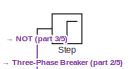
[diagram: root canvas - part 1/5, top center region]
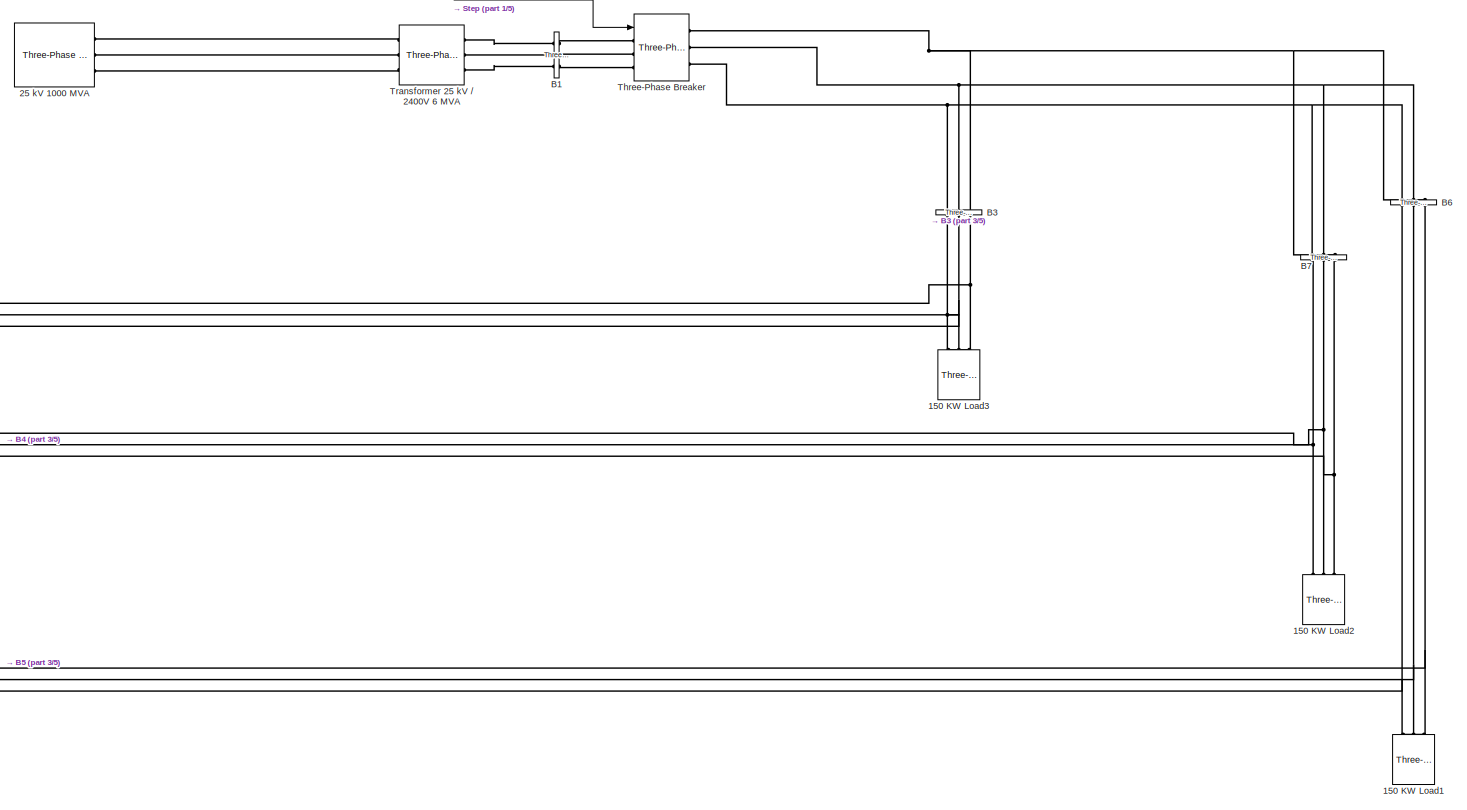
[diagram: root canvas - part 2/5, central region]
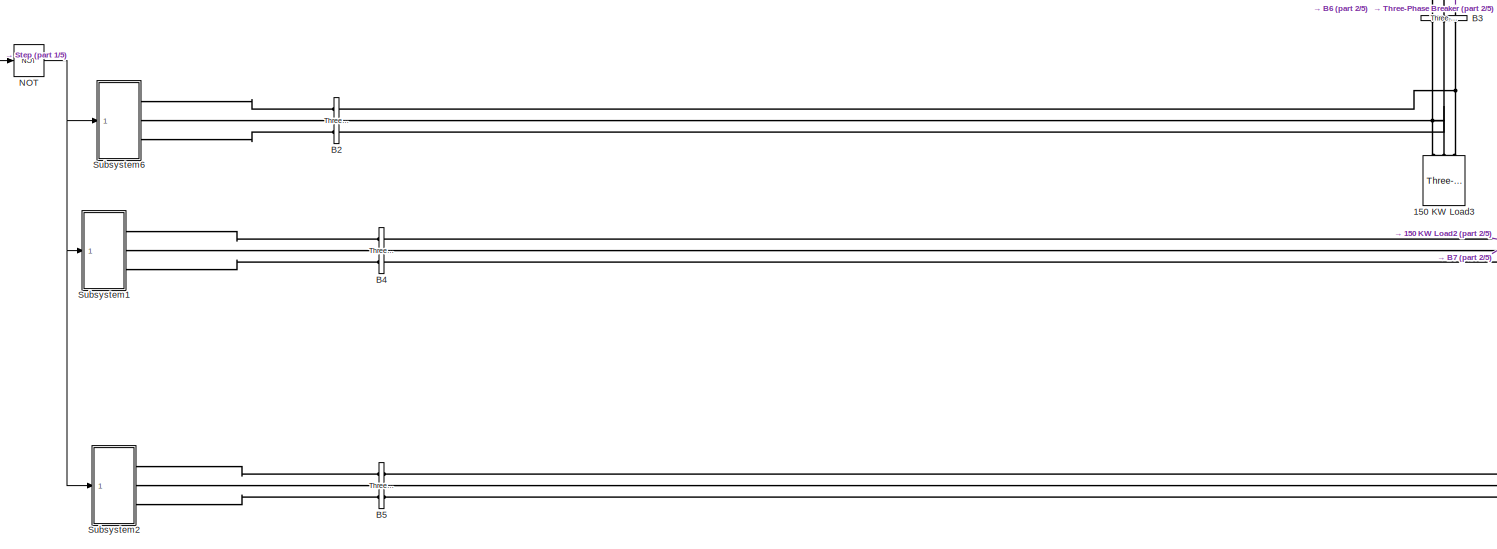
[diagram: root canvas - part 3/5, middle left region]
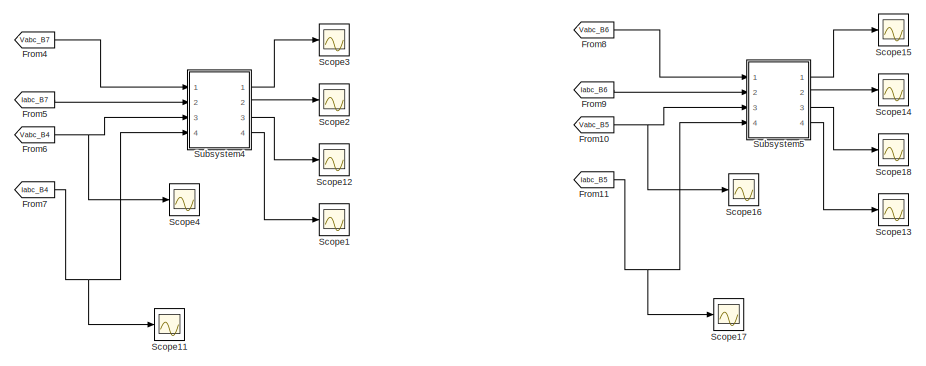
[diagram: root canvas - part 4/5, bottom right region]
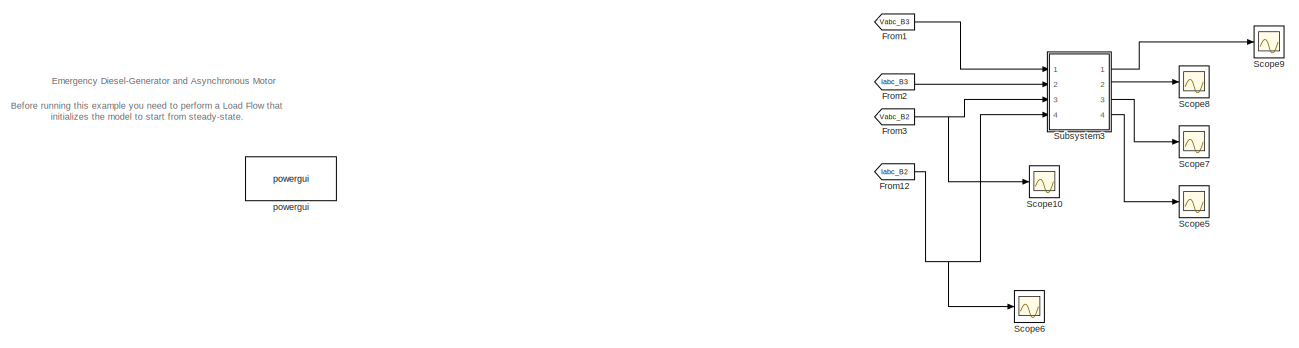
[diagram: root canvas - part 5/5, bottom left region]
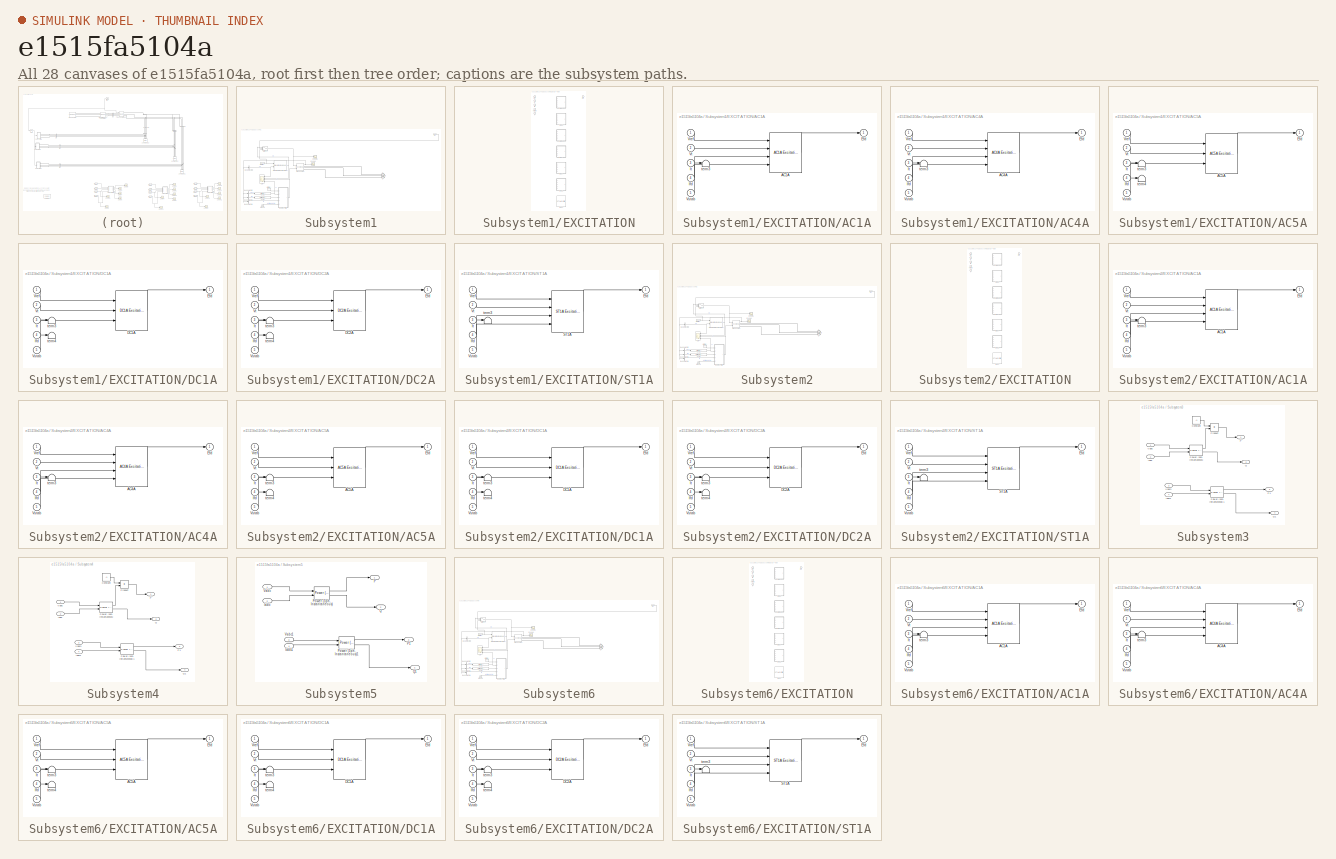
[diagram: thumbnail index - all 28 canvases of the model, root first then tree order]
MODEL slx_e1515fa5104a
KIND model
CONFIG AbsTol = auto
CONFIG EnableMultiTasking = off
CONFIG FixedStep = auto
CONFIG MaxStep = auto
CONFIG MinStep = auto
CONFIG RelTol = 1e-3
CONFIG SampleTimeConstraint = Unconstrained
CONFIG Solver = VariableStepAuto
CONFIG SolverName = VariableStepAuto
CONFIG StartTime = 0.0
CONFIG StopTime = 20
BLOCK [Reference] 150 KW Load1  REF=powerlib/Elements/Three-Phase
Parallel RLC Load
  AttributesFormatString = \n
  NameLocation = left
  Ports = [0, 0, 0, 0, 0, 3]
  SourceBlock = powerlib/Elements/Three-Phase\nParallel RLC Load
  SourceProductBaseCode = MT,PS
  SourceType = Three-Phase Parallel RLC Load
BLOCK [Reference] 150 KW Load2  REF=powerlib/Elements/Three-Phase
Parallel RLC Load
  AttributesFormatString = \n
  NameLocation = left
  Ports = [0, 0, 0, 0, 0, 3]
  SourceBlock = powerlib/Elements/Three-Phase\nParallel RLC Load
  SourceProductBaseCode = MT,PS
  SourceType = Three-Phase Parallel RLC Load
BLOCK [Reference] 150 KW Load3  REF=powerlib/Elements/Three-Phase
Parallel RLC Load
  AttributesFormatString = \n
  NameLocation = left
  Ports = [0, 0, 0, 0, 0, 3]
  SourceBlock = powerlib/Elements/Three-Phase\nParallel RLC Load
  SourceProductBaseCode = MT,PS
  SourceType = Three-Phase Parallel RLC Load
BLOCK [Reference] 25 kV 1000 MVA  REF=powerlib/Electrical
Sources/Three-Phase Source
  NameLocation = top
  Ports = [0, 0, 0, 0, 0, 0, 3]
  SourceBlock = powerlib/Electrical\nSources/Three-Phase Source
  SourceProductBaseCode = MT,PS
  SourceType = Three-Phase Source
BLOCK [Reference] B1  REF=powerlib/Measurements/Three-Phase
V-I Measurement
  Ports = [0, 0, 0, 0, 0, 3, 3]
  SourceBlock = powerlib/Measurements/Three-Phase\nV-I Measurement
  SourceProductBaseCode = MT,PS
  SourceType = Three-Phase VI Measurement
BLOCK [Reference] B2  REF=powerlib/Measurements/Three-Phase
V-I Measurement
  Ports = [0, 0, 0, 0, 0, 3, 3]
  SourceBlock = powerlib/Measurements/Three-Phase\nV-I Measurement
  SourceProductBaseCode = MT,PS
  SourceType = Three-Phase VI Measurement
BLOCK [Reference] B3  REF=powerlib/Measurements/Three-Phase
V-I Measurement
  NameLocation = left
  Ports = [0, 0, 0, 0, 0, 3, 3]
  SourceBlock = powerlib/Measurements/Three-Phase\nV-I Measurement
  SourceProductBaseCode = MT,PS
  SourceType = Three-Phase VI Measurement
BLOCK [Reference] B4  REF=powerlib/Measurements/Three-Phase
V-I Measurement
  Ports = [0, 0, 0, 0, 0, 3, 3]
  SourceBlock = powerlib/Measurements/Three-Phase\nV-I Measurement
  SourceProductBaseCode = MT,PS
  SourceType = Three-Phase VI Measurement
BLOCK [Reference] B5  REF=powerlib/Measurements/Three-Phase
V-I Measurement
  Ports = [0, 0, 0, 0, 0, 3, 3]
  SourceBlock = powerlib/Measurements/Three-Phase\nV-I Measurement
  SourceProductBaseCode = MT,PS
  SourceType = Three-Phase VI Measurement
BLOCK [Reference] B6  REF=powerlib/Measurements/Three-Phase
V-I Measurement
  NameLocation = left
  Ports = [0, 0, 0, 0, 0, 3, 3]
  SourceBlock = powerlib/Measurements/Three-Phase\nV-I Measurement
  SourceProductBaseCode = MT,PS
  SourceType = Three-Phase VI Measurement
BLOCK [Reference] B7  REF=powerlib/Measurements/Three-Phase
V-I Measurement
  NameLocation = left
  Ports = [0, 0, 0, 0, 0, 3, 3]
  SourceBlock = powerlib/Measurements/Three-Phase\nV-I Measurement
  SourceProductBaseCode = MT,PS
  SourceType = Three-Phase VI Measurement
BLOCK [From] From1
  GotoTag = Vabc_B3
  TagVisibility = global
BLOCK [From] From10
  GotoTag = Vabc_B5
  IconDisplay = Tag and signal name
  TagVisibility = global
BLOCK [From] From11
  GotoTag = Iabc_B5
  TagVisibility = global
BLOCK [From] From12
  GotoTag = Iabc_B2
  TagVisibility = global
BLOCK [From] From2
  GotoTag = Iabc_B3
  TagVisibility = global
BLOCK [From] From3
  GotoTag = Vabc_B2
  IconDisplay = Tag and signal name
  TagVisibility = global
BLOCK [From] From4
  GotoTag = Vabc_B7
  TagVisibility = global
BLOCK [From] From5
  GotoTag = Iabc_B7
  TagVisibility = global
BLOCK [From] From6
  GotoTag = Vabc_B4
  IconDisplay = Tag and signal name
  TagVisibility = global
BLOCK [From] From7
  GotoTag = Iabc_B4
  TagVisibility = global
BLOCK [From] From8
  GotoTag = Vabc_B6
  TagVisibility = global
BLOCK [From] From9
  GotoTag = Iabc_B6
  TagVisibility = global
BLOCK [Logic] NOT
  AllPortsSameDT = off
  IconShape = distinctive
  Operator = NOT
  OutDataTypeStr = boolean
  Ports = [1, 1]
BLOCK [Scope] Scope1
  Floating = off
  NumInputPorts = 1
  Ports = [1]
  ScopeSpecificationString = Simulink.scopes.TimeScopeBlockCfg('CurrentConfiguration', extmgr.ConfigurationSet(extmgr.Configuration('Core','General UI',true),extmgr.Configuration('Core','Source UI',true),extmgr.Configuration('Sources','WiredSimulink',true,'DataLoggingVariableName','ScopeData5'),extmgr.Configuration('Visuals','Time Domain',true,'SerializedDisplays',{struct('MinYLimReal','0.00000000000000004','MaxYLimReal','0.0...<+1556ch>
BLOCK [Scope] Scope10
  Floating = off
  NumInputPorts = 1
  Ports = [1]
  ScopeSpecificationString = Simulink.scopes.TimeScopeBlockCfg('CurrentConfiguration', extmgr.ConfigurationSet(extmgr.Configuration('Core','General UI',true),extmgr.Configuration('Core','Source UI',true),extmgr.Configuration('Sources','WiredSimulink',true,'DataLoggingVariableName','ScopeData2'),extmgr.Configuration('Visuals','Time Domain',true,'SerializedDisplays',{struct('MinYLimReal','-3511.90822','MaxYLimReal','3511.86953'...<+1589ch>
BLOCK [Scope] Scope11
  Floating = off
  NumInputPorts = 1
  Ports = [1]
  ScopeSpecificationString = Simulink.scopes.TimeScopeBlockCfg('CurrentConfiguration', extmgr.ConfigurationSet(extmgr.Configuration('Core','General UI',true),extmgr.Configuration('Core','Source UI',true),extmgr.Configuration('Sources','WiredSimulink',true,'DataLoggingVariableName','ScopeData6'),extmgr.Configuration('Visuals','Time Domain',true,'SerializedDisplays',{struct('MinYLimReal','-2114.75933','MaxYLimReal','1721.56499'...<+1454ch>
BLOCK [Scope] Scope12
  Floating = off
  NumInputPorts = 1
  Ports = [1]
  ScopeSpecificationString = Simulink.scopes.TimeScopeBlockCfg('CurrentConfiguration', extmgr.ConfigurationSet(extmgr.Configuration('Core','General UI',true),extmgr.Configuration('Core','Source UI',true),extmgr.Configuration('Sources','WiredSimulink',true,'DataLoggingVariableName','ScopeData12'),extmgr.Configuration('Visuals','Time Domain',true,'SerializedDisplays',{struct('MinYLimReal','-123008.15898','MaxYLimReal','818809.2...<+1489ch>
BLOCK [Scope] Scope13
  Floating = off
  NumInputPorts = 1
  Ports = [1]
  ScopeSpecificationString = Simulink.scopes.TimeScopeBlockCfg('CurrentConfiguration', extmgr.ConfigurationSet(extmgr.Configuration('Core','General UI',true),extmgr.Configuration('Core','Source UI',true),extmgr.Configuration('Sources','WiredSimulink',true,'DataLoggingVariableName','ScopeData16'),extmgr.Configuration('Visuals','Time Domain',true,'SerializedDisplays',{struct('MinYLimReal','0.00000000000000004','MaxYLimReal','0....<+1557ch>
BLOCK [Scope] Scope14
  Floating = off
  NumInputPorts = 1
  Ports = [1]
  ScopeSpecificationString = Simulink.scopes.TimeScopeBlockCfg('CurrentConfiguration', extmgr.ConfigurationSet(extmgr.Configuration('Core','General UI',true),extmgr.Configuration('Core','Source UI',true),extmgr.Configuration('Sources','WiredSimulink',true,'DataLoggingVariableName','ScopeData17'),extmgr.Configuration('Visuals','Time Domain',true,'SerializedDisplays',{struct('MinYLimReal','10.63787','MaxYLimReal','11.1698','YLa...<+1549ch>
BLOCK [Scope] Scope15
  Floating = off
  NumInputPorts = 1
  Ports = [1]
  ScopeSpecificationString = Simulink.scopes.TimeScopeBlockCfg('CurrentConfiguration', extmgr.ConfigurationSet(extmgr.Configuration('Core','General UI',true),extmgr.Configuration('Core','Source UI',true),extmgr.Configuration('Sources','WiredSimulink',true,'DataLoggingVariableName','ScopeData18'),extmgr.Configuration('Visuals','Time Domain',true,'SerializedDisplays',{struct('MinYLimReal','-39788.00085','MaxYLimReal','145786.94...<+1485ch>
BLOCK [Scope] Scope16
  Floating = off
  NumInputPorts = 1
  Ports = [1]
  ScopeSpecificationString = Simulink.scopes.TimeScopeBlockCfg('CurrentConfiguration', extmgr.ConfigurationSet(extmgr.Configuration('Core','General UI',true),extmgr.Configuration('Core','Source UI',true),extmgr.Configuration('Sources','WiredSimulink',true,'DataLoggingVariableName','ScopeData19'),extmgr.Configuration('Visuals','Time Domain',true,'SerializedDisplays',{struct('MinYLimReal','-3511.90822','MaxYLimReal','3511.86953...<+1590ch>
BLOCK [Scope] Scope17
  Floating = off
  NumInputPorts = 1
  Ports = [1]
  ScopeSpecificationString = Simulink.scopes.TimeScopeBlockCfg('CurrentConfiguration', extmgr.ConfigurationSet(extmgr.Configuration('Core','General UI',true),extmgr.Configuration('Core','Source UI',true),extmgr.Configuration('Sources','WiredSimulink',true,'DataLoggingVariableName','ScopeData20'),extmgr.Configuration('Visuals','Time Domain',true,'SerializedDisplays',{struct('MinYLimReal','-2114.75933','MaxYLimReal','1721.56499...<+1455ch>
BLOCK [Scope] Scope18
  Floating = off
  NumInputPorts = 1
  Ports = [1]
  ScopeSpecificationString = Simulink.scopes.TimeScopeBlockCfg('CurrentConfiguration', extmgr.ConfigurationSet(extmgr.Configuration('Core','General UI',true),extmgr.Configuration('Core','Source UI',true),extmgr.Configuration('Sources','WiredSimulink',true,'DataLoggingVariableName','ScopeData21'),extmgr.Configuration('Visuals','Time Domain',true,'SerializedDisplays',{struct('MinYLimReal','-493776.488','MaxYLimReal','1625312.67...<+1489ch>
BLOCK [Scope] Scope2
  Floating = off
  NumInputPorts = 1
  Ports = [1]
  ScopeSpecificationString = Simulink.scopes.TimeScopeBlockCfg('CurrentConfiguration', extmgr.ConfigurationSet(extmgr.Configuration('Core','General UI',true),extmgr.Configuration('Core','Source UI',true),extmgr.Configuration('Sources','WiredSimulink',true,'DataLoggingVariableName','ScopeData13'),extmgr.Configuration('Visuals','Time Domain',true,'SerializedDisplays',{struct('MinYLimReal','10.63787','MaxYLimReal','11.1698','YLa...<+1549ch>
BLOCK [Scope] Scope3
  Floating = off
  NumInputPorts = 1
  Ports = [1]
  ScopeSpecificationString = Simulink.scopes.TimeScopeBlockCfg('CurrentConfiguration', extmgr.ConfigurationSet(extmgr.Configuration('Core','General UI',true),extmgr.Configuration('Core','Source UI',true),extmgr.Configuration('Sources','WiredSimulink',true,'DataLoggingVariableName','ScopeData14'),extmgr.Configuration('Visuals','Time Domain',true,'SerializedDisplays',{struct('MinYLimReal','-3094568.5941','MaxYLimReal','7606618....<+1514ch>
BLOCK [Scope] Scope4
  Floating = off
  NumInputPorts = 1
  Ports = [1]
  ScopeSpecificationString = Simulink.scopes.TimeScopeBlockCfg('CurrentConfiguration', extmgr.ConfigurationSet(extmgr.Configuration('Core','General UI',true),extmgr.Configuration('Core','Source UI',true),extmgr.Configuration('Sources','WiredSimulink',true,'DataLoggingVariableName','ScopeData15'),extmgr.Configuration('Visuals','Time Domain',true,'SerializedDisplays',{struct('MinYLimReal','-3511.90822','MaxYLimReal','3511.86953...<+1590ch>
BLOCK [Scope] Scope5
  Floating = off
  NumInputPorts = 1
  Ports = [1]
  ScopeSpecificationString = Simulink.scopes.TimeScopeBlockCfg('CurrentConfiguration', extmgr.ConfigurationSet(extmgr.Configuration('Core','General UI',true),extmgr.Configuration('Core','Source UI',true),extmgr.Configuration('Sources','WiredSimulink',true,'DataLoggingVariableName','ScopeData7'),extmgr.Configuration('Visuals','Time Domain',true,'SerializedDisplays',{struct('MinYLimReal','0.00000000000000004','MaxYLimReal','0.0...<+1556ch>
BLOCK [Scope] Scope6
  Floating = off
  NumInputPorts = 1
  Ports = [1]
  ScopeSpecificationString = Simulink.scopes.TimeScopeBlockCfg('CurrentConfiguration', extmgr.ConfigurationSet(extmgr.Configuration('Core','General UI',true),extmgr.Configuration('Core','Source UI',true),extmgr.Configuration('Sources','WiredSimulink',true,'DataLoggingVariableName','ScopeData8'),extmgr.Configuration('Visuals','Time Domain',true,'SerializedDisplays',{struct('MinYLimReal','-2114.75933','MaxYLimReal','1721.56499'...<+1454ch>
BLOCK [Scope] Scope7
  Floating = off
  NumInputPorts = 1
  Ports = [1]
  ScopeSpecificationString = Simulink.scopes.TimeScopeBlockCfg('CurrentConfiguration', extmgr.ConfigurationSet(extmgr.Configuration('Core','General UI',true),extmgr.Configuration('Core','Source UI',true),extmgr.Configuration('Sources','WiredSimulink',true,'DataLoggingVariableName','ScopeData2'),extmgr.Configuration('Visuals','Time Domain',true,'SerializedDisplays',{struct('MinYLimReal','-127447.49206','MaxYLimReal','1989524.2...<+1518ch>
BLOCK [Scope] Scope8
  Floating = off
  NumInputPorts = 1
  Ports = [1]
  ScopeSpecificationString = Simulink.scopes.TimeScopeBlockCfg('CurrentConfiguration', extmgr.ConfigurationSet(extmgr.Configuration('Core','General UI',true),extmgr.Configuration('Core','Source UI',true),extmgr.Configuration('Sources','WiredSimulink',true,'DataLoggingVariableName','ScopeData10'),extmgr.Configuration('Visuals','Time Domain',true,'SerializedDisplays',{struct('MinYLimReal','-5161768.63415','MaxYLimReal','4070154...<+1518ch>
BLOCK [Scope] Scope9
  Floating = off
  NumInputPorts = 1
  Ports = [1]
  ScopeSpecificationString = Simulink.scopes.TimeScopeBlockCfg('CurrentConfiguration', extmgr.ConfigurationSet(extmgr.Configuration('Core','General UI',true),extmgr.Configuration('Core','Source UI',true),extmgr.Configuration('Sources','WiredSimulink',true,'DataLoggingVariableName','ScopeData1'),extmgr.Configuration('Visuals','Time Domain',true,'SerializedDisplays',{struct('MinYLimReal','-1406829.96838','MaxYLimReal','3346885....<+1512ch>
BLOCK [Step] Step
  After = 0
  Before = 1
  SampleTime = 0
  Time = 4
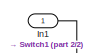
[diagram: Subsystem1 - part 1/2, top right region]
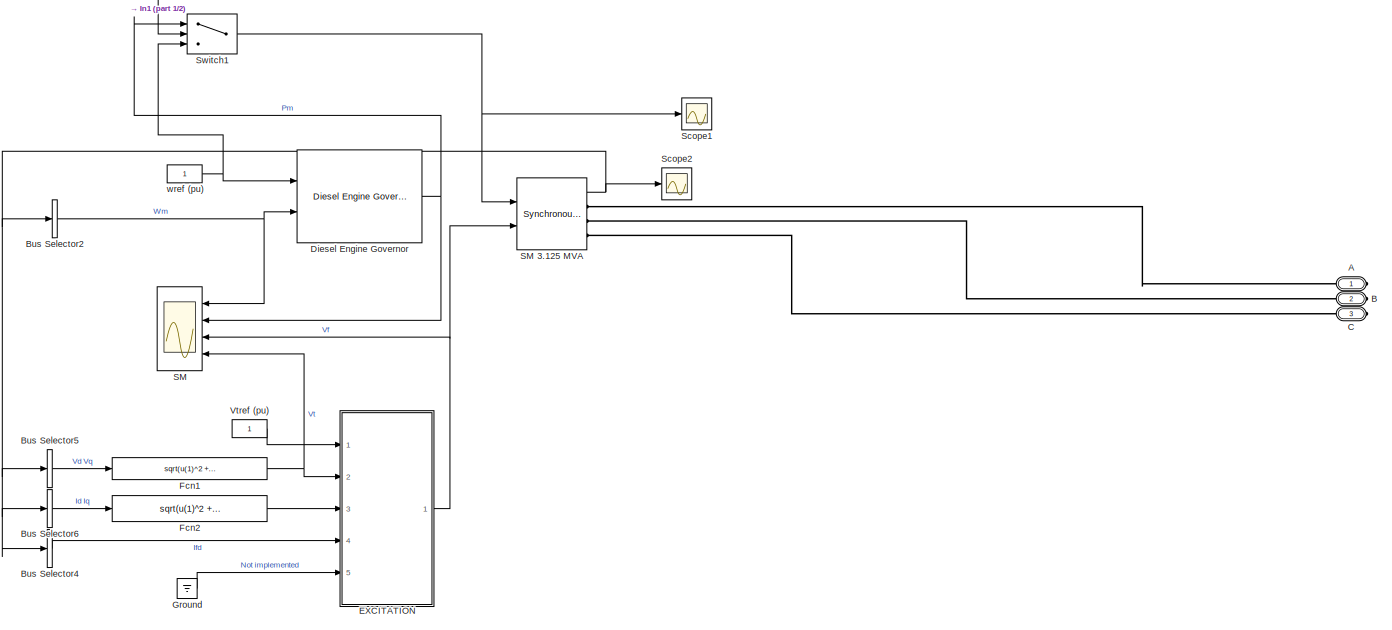
[diagram: Subsystem1 - part 2/2, center side, full height]
BLOCK [SubSystem] Subsystem1
  Ports = [1, 0, 0, 0, 0, 0, 3]
  RequestExecContextInheritance = off
BLOCK [PMIOPort] Subsystem1/A
  Side = Right
BLOCK [PMIOPort] Subsystem1/B
  Port = 2
  Side = Right
BLOCK [BusSelector] Subsystem1/Bus Selector2
  NameLocation = top
  OutputAsBus = on
  OutputSignals = Mechanical.Rotor speed  wm  (pu)
  Ports = [1, 1]
BLOCK [BusSelector] Subsystem1/Bus Selector4
  OutputAsBus = on
  OutputSignals = dq0 components.Field current  ifd (pu)
  Ports = [1, 1]
BLOCK [BusSelector] Subsystem1/Bus Selector5
  OutputAsBus = on
  OutputSignals = dq0 components.Stator voltage  vd (pu),dq0 components.Stator voltage  vq (pu)
  Ports = [1, 1]
BLOCK [BusSelector] Subsystem1/Bus Selector6
  OutputAsBus = on
  OutputSignals = dq0 components.Stator current  id (pu),dq0 components.Stator current  iq (pu)
  Ports = [1, 1]
BLOCK [PMIOPort] Subsystem1/C
  Port = 3
  Side = Right
BLOCK [Reference] Subsystem1/Diesel Engine Governor  REF=spsDieselMotorModel/Diesel Engine Governor
  Ports = [2, 1]
  SourceBlock = spsDieselMotorModel/Diesel Engine Governor
  SourceProductBaseCode = MT,PS
  SourceType = Diesel Engine & Governor
BLOCK [SubSystem] Subsystem1/EXCITATION
  AttributesFormatString = %<BlockChoice>
  LabelModeActiveChoice = Variant1
  Ports = [5, 1]
  RequestExecContextInheritance = off
  Variant = on
  VariantControlMode = Label
BLOCK [SubSystem] Subsystem1/EXCITATION/AC1A
  Ports = [5, 1]
  RequestExecContextInheritance = off
  VariantControl = Variant1
BLOCK [Reference] Subsystem1/EXCITATION/AC1A/AC1A  REF=sps_avr/AC1A
Excitation System
  Ports = [4, 1]
  SourceBlock = sps_avr/AC1A\nExcitation System
  SourceProductBaseCode = MT,PS
  SourceType = AC1A Excitation System
BLOCK [Outport] Subsystem1/EXCITATION/AC1A/Efd
  VectorParamsAs1DForOutWhenUnconnected = off
BLOCK [Inport] Subsystem1/EXCITATION/AC1A/Ifd
  Port = 4
BLOCK [Inport] Subsystem1/EXCITATION/AC1A/It
  Port = 3
BLOCK [Inport] Subsystem1/EXCITATION/AC1A/Vref
BLOCK [Inport] Subsystem1/EXCITATION/AC1A/Vstab
  Port = 5
BLOCK [Inport] Subsystem1/EXCITATION/AC1A/Vt
  Port = 2
BLOCK [Terminator] Subsystem1/EXCITATION/AC1A/term3
BLOCK [SubSystem] Subsystem1/EXCITATION/AC4A
  Ports = [5, 1]
  RequestExecContextInheritance = off
  VariantControl = Variant2
BLOCK [Reference] Subsystem1/EXCITATION/AC4A/AC4A  REF=sps_avr/AC4A
Excitation System
  Ports = [4, 1]
  SourceBlock = sps_avr/AC4A\nExcitation System
  SourceProductBaseCode = MT,PS
  SourceType = AC4A Excitation System
BLOCK [Outport] Subsystem1/EXCITATION/AC4A/Efd
  VectorParamsAs1DForOutWhenUnconnected = off
BLOCK [Inport] Subsystem1/EXCITATION/AC4A/Ifd
  Port = 4
BLOCK [Inport] Subsystem1/EXCITATION/AC4A/It
  Port = 3
BLOCK [Inport] Subsystem1/EXCITATION/AC4A/Vref
BLOCK [Inport] Subsystem1/EXCITATION/AC4A/Vstab
  Port = 5
BLOCK [Inport] Subsystem1/EXCITATION/AC4A/Vt
  Port = 2
BLOCK [Terminator] Subsystem1/EXCITATION/AC4A/term3
BLOCK [SubSystem] Subsystem1/EXCITATION/AC5A
  Ports = [5, 1]
  RequestExecContextInheritance = off
  VariantControl = Variant3
BLOCK [Reference] Subsystem1/EXCITATION/AC5A/AC5A  REF=sps_avr/AC5A
Excitation System
  Ports = [3, 1]
  SourceBlock = sps_avr/AC5A\nExcitation System
  SourceProductBaseCode = MT,PS
  SourceType = AC5A Excitation System
BLOCK [Outport] Subsystem1/EXCITATION/AC5A/Efd
  VectorParamsAs1DForOutWhenUnconnected = off
BLOCK [Inport] Subsystem1/EXCITATION/AC5A/Ifd
  Port = 4
BLOCK [Inport] Subsystem1/EXCITATION/AC5A/It
  Port = 3
BLOCK [Inport] Subsystem1/EXCITATION/AC5A/Vref
BLOCK [Inport] Subsystem1/EXCITATION/AC5A/Vstab
  Port = 5
BLOCK [Inport] Subsystem1/EXCITATION/AC5A/Vt
  Port = 2
BLOCK [Terminator] Subsystem1/EXCITATION/AC5A/term3
BLOCK [Terminator] Subsystem1/EXCITATION/AC5A/term4
BLOCK [SubSystem] Subsystem1/EXCITATION/DC1A
  Ports = [5, 1]
  RequestExecContextInheritance = off
  VariantControl = Variant4
BLOCK [Reference] Subsystem1/EXCITATION/DC1A/DC1A  REF=sps_avr/DC1A
Excitation System
  Ports = [3, 1]
  SourceBlock = sps_avr/DC1A\nExcitation System
  SourceProductBaseCode = MT,PS
  SourceType = DC1A Excitation System
BLOCK [Outport] Subsystem1/EXCITATION/DC1A/Efd
  VectorParamsAs1DForOutWhenUnconnected = off
BLOCK [Inport] Subsystem1/EXCITATION/DC1A/Ifd
  Port = 4
BLOCK [Inport] Subsystem1/EXCITATION/DC1A/It
  Port = 3
BLOCK [Inport] Subsystem1/EXCITATION/DC1A/Vref
BLOCK [Inport] Subsystem1/EXCITATION/DC1A/Vstab
  Port = 5
BLOCK [Inport] Subsystem1/EXCITATION/DC1A/Vt
  Port = 2
BLOCK [Terminator] Subsystem1/EXCITATION/DC1A/term3
BLOCK [Terminator] Subsystem1/EXCITATION/DC1A/term4
BLOCK [SubSystem] Subsystem1/EXCITATION/DC2A
  Ports = [5, 1]
  RequestExecContextInheritance = off
  VariantControl = Variant5
BLOCK [Reference] Subsystem1/EXCITATION/DC2A/DC2A  REF=sps_avr/DC2A
Excitation System
  Ports = [3, 1]
  SourceBlock = sps_avr/DC2A\nExcitation System
  SourceProductBaseCode = MT,PS
  SourceType = DC2A Excitation System
BLOCK [Outport] Subsystem1/EXCITATION/DC2A/Efd
  VectorParamsAs1DForOutWhenUnconnected = off
BLOCK [Inport] Subsystem1/EXCITATION/DC2A/Ifd
  Port = 4
BLOCK [Inport] Subsystem1/EXCITATION/DC2A/It
  Port = 3
BLOCK [Inport] Subsystem1/EXCITATION/DC2A/Vref
BLOCK [Inport] Subsystem1/EXCITATION/DC2A/Vstab
  Port = 5
BLOCK [Inport] Subsystem1/EXCITATION/DC2A/Vt
  Port = 2
BLOCK [Terminator] Subsystem1/EXCITATION/DC2A/term3
BLOCK [Terminator] Subsystem1/EXCITATION/DC2A/term4
BLOCK [Outport] Subsystem1/EXCITATION/Efd
  VectorParamsAs1DForOutWhenUnconnected = off
BLOCK [Inport] Subsystem1/EXCITATION/Ifd
  Port = 4
BLOCK [Inport] Subsystem1/EXCITATION/It
  Port = 3
BLOCK [SubSystem] Subsystem1/EXCITATION/ST1A
  Ports = [5, 1]
  RequestExecContextInheritance = off
  VariantControl = Variant6
BLOCK [Outport] Subsystem1/EXCITATION/ST1A/Efd
  VectorParamsAs1DForOutWhenUnconnected = off
BLOCK [Inport] Subsystem1/EXCITATION/ST1A/Ifd
  Port = 4
BLOCK [Inport] Subsystem1/EXCITATION/ST1A/It
  Port = 3
BLOCK [Reference] Subsystem1/EXCITATION/ST1A/ST1A  REF=sps_avr/ST1A
Excitation System
  Ports = [4, 1]
  SourceBlock = sps_avr/ST1A\nExcitation System
  SourceProductBaseCode = MT,PS
  SourceType = ST1A Excitation System
BLOCK [Inport] Subsystem1/EXCITATION/ST1A/Vref
BLOCK [Inport] Subsystem1/EXCITATION/ST1A/Vstab
  Port = 5
BLOCK [Inport] Subsystem1/EXCITATION/ST1A/Vt
  Port = 2
BLOCK [Terminator] Subsystem1/EXCITATION/ST1A/term3
BLOCK [Reference] Subsystem1/EXCITATION/ST2A  REF=sps_avr/ST2A
Excitation System
  Ports = [5, 1]
  SourceBlock = sps_avr/ST2A\nExcitation System
  SourceProductBaseCode = MT,PS
  SourceType = ST2A Excitation System
BLOCK [Inport] Subsystem1/EXCITATION/Vref
BLOCK [Inport] Subsystem1/EXCITATION/Vstab
  Port = 5
BLOCK [Inport] Subsystem1/EXCITATION/Vt
  Port = 2
BLOCK [Fcn] Subsystem1/Fcn1
  Expr = sqrt(u(1)^2 + u(2)^2)
BLOCK [Fcn] Subsystem1/Fcn2
  Expr = sqrt(u(1)^2 + u(2)^2)
BLOCK [Ground] Subsystem1/Ground
BLOCK [Inport] Subsystem1/In1
BLOCK [Scope] Subsystem1/SM
  Floating = off
  NameLocation = top
  NumInputPorts = 4
  Ports = [4]
  ScopeSpecificationString = Simulink.scopes.TimeScopeBlockCfg('CurrentConfiguration', extmgr.ConfigurationSet(extmgr.Configuration('Core','General UI',true),extmgr.Configuration('Core','Source UI',true),extmgr.Configuration('Sources','WiredSimulink',true,'DataLoggingSaveFormat','Array','DataLoggingDecimation','1','DataLoggingDecimateData',true),extmgr.Configuration('Visuals','Time Domain',true,'SerializedDisplays',{struct('M...<+3684ch>
BLOCK [Reference] Subsystem1/SM 3.125 MVA  REF=powerlib/Machines/Synchronous Machine
pu Standard
  AttributesFormatString = \n\n
  Ports = [2, 1, 0, 0, 0, 0, 3]
  SourceBlock = powerlib/Machines/Synchronous Machine\npu Standard
  SourceProductBaseCode = MT,PS
  SourceType = Synchronous Machine
BLOCK [Scope] Subsystem1/Scope1
  Floating = off
  NumInputPorts = 1
  Ports = [1]
  ScopeSpecificationString = Simulink.scopes.TimeScopeBlockCfg('CurrentConfiguration', extmgr.ConfigurationSet(extmgr.Configuration('Core','General UI',true),extmgr.Configuration('Core','Source UI',true),extmgr.Configuration('Sources','WiredSimulink',true,'DataLoggingVariableName','ScopeData1'),extmgr.Configuration('Visuals','Time Domain',true,'SerializedDisplays',{struct('MinYLimReal','-0.125','MaxYLimReal','1.125','YLabelRe...<+1420ch>
BLOCK [Scope] Subsystem1/Scope2
  Floating = off
  NumInputPorts = 1
  Ports = [1]
  ScopeSpecificationString = Simulink.scopes.TimeScopeBlockCfg('CurrentConfiguration', extmgr.ConfigurationSet(extmgr.Configuration('Core','General UI',true),extmgr.Configuration('Core','Source UI',true),extmgr.Configuration('Sources','WiredSimulink',true,'DataLoggingVariableName','ScopeData4'),extmgr.Configuration('Visuals','Time Domain',true,'SerializedDisplays',{struct('MinYLimReal','-3.47618','MaxYLimReal','257.3983','YLa...<+2006ch>  <repeated x3 — deduplicated; at blocks: Scope2>
BLOCK [Switch] Subsystem1/Switch1
  Criteria = u2 > Threshold
  InputSameDT = off
  SaturateOnIntegerOverflow = off
BLOCK [Constant] Subsystem1/Vtref (pu) 
  NameLocation = top
BLOCK [Constant] Subsystem1/wref (pu)
  NameLocation = top
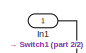
[diagram: Subsystem2 - part 1/2, top right region]
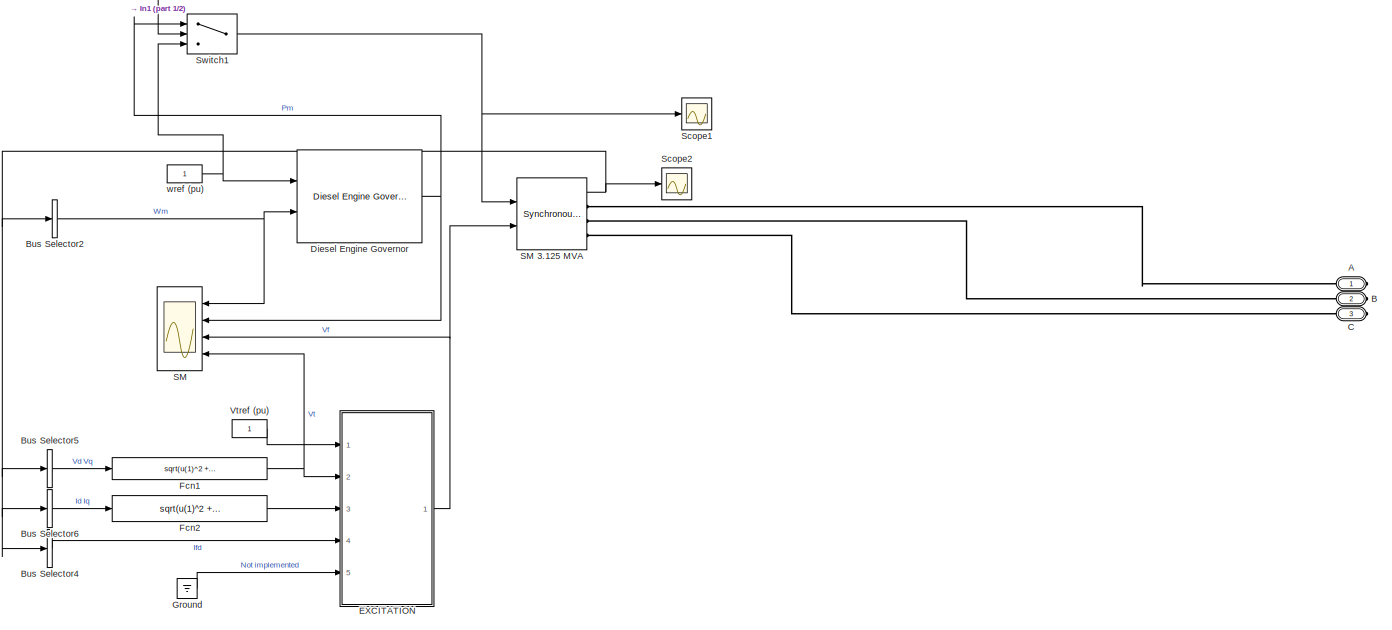
[diagram: Subsystem2 - part 2/2, center side, full height]
BLOCK [SubSystem] Subsystem2
  Ports = [1, 0, 0, 0, 0, 0, 3]
  RequestExecContextInheritance = off
BLOCK [PMIOPort] Subsystem2/A
  Side = Right
BLOCK [PMIOPort] Subsystem2/B
  Port = 2
  Side = Right
BLOCK [BusSelector] Subsystem2/Bus Selector2
  NameLocation = top
  OutputAsBus = on
  OutputSignals = Mechanical.Rotor speed  wm  (pu)
  Ports = [1, 1]
BLOCK [BusSelector] Subsystem2/Bus Selector4
  OutputAsBus = on
  OutputSignals = dq0 components.Field current  ifd (pu)
  Ports = [1, 1]
BLOCK [BusSelector] Subsystem2/Bus Selector5
  OutputAsBus = on
  OutputSignals = dq0 components.Stator voltage  vd (pu),dq0 components.Stator voltage  vq (pu)
  Ports = [1, 1]
BLOCK [BusSelector] Subsystem2/Bus Selector6
  OutputAsBus = on
  OutputSignals = dq0 components.Stator current  id (pu),dq0 components.Stator current  iq (pu)
  Ports = [1, 1]
BLOCK [PMIOPort] Subsystem2/C
  Port = 3
  Side = Right
BLOCK [Reference] Subsystem2/Diesel Engine Governor  REF=spsDieselMotorModel/Diesel Engine Governor
  Ports = [2, 1]
  SourceBlock = spsDieselMotorModel/Diesel Engine Governor
  SourceProductBaseCode = MT,PS
  SourceType = Diesel Engine & Governor
BLOCK [SubSystem] Subsystem2/EXCITATION
  AttributesFormatString = %<BlockChoice>
  LabelModeActiveChoice = Variant1
  Ports = [5, 1]
  RequestExecContextInheritance = off
  Variant = on
  VariantControlMode = Label
BLOCK [SubSystem] Subsystem2/EXCITATION/AC1A
  Ports = [5, 1]
  RequestExecContextInheritance = off
  VariantControl = Variant1
BLOCK [Reference] Subsystem2/EXCITATION/AC1A/AC1A  REF=sps_avr/AC1A
Excitation System
  Ports = [4, 1]
  SourceBlock = sps_avr/AC1A\nExcitation System
  SourceProductBaseCode = MT,PS
  SourceType = AC1A Excitation System
BLOCK [Outport] Subsystem2/EXCITATION/AC1A/Efd
  VectorParamsAs1DForOutWhenUnconnected = off
BLOCK [Inport] Subsystem2/EXCITATION/AC1A/Ifd
  Port = 4
BLOCK [Inport] Subsystem2/EXCITATION/AC1A/It
  Port = 3
BLOCK [Inport] Subsystem2/EXCITATION/AC1A/Vref
BLOCK [Inport] Subsystem2/EXCITATION/AC1A/Vstab
  Port = 5
BLOCK [Inport] Subsystem2/EXCITATION/AC1A/Vt
  Port = 2
BLOCK [Terminator] Subsystem2/EXCITATION/AC1A/term3
BLOCK [SubSystem] Subsystem2/EXCITATION/AC4A
  Ports = [5, 1]
  RequestExecContextInheritance = off
  VariantControl = Variant2
BLOCK [Reference] Subsystem2/EXCITATION/AC4A/AC4A  REF=sps_avr/AC4A
Excitation System
  Ports = [4, 1]
  SourceBlock = sps_avr/AC4A\nExcitation System
  SourceProductBaseCode = MT,PS
  SourceType = AC4A Excitation System
BLOCK [Outport] Subsystem2/EXCITATION/AC4A/Efd
  VectorParamsAs1DForOutWhenUnconnected = off
BLOCK [Inport] Subsystem2/EXCITATION/AC4A/Ifd
  Port = 4
BLOCK [Inport] Subsystem2/EXCITATION/AC4A/It
  Port = 3
BLOCK [Inport] Subsystem2/EXCITATION/AC4A/Vref
BLOCK [Inport] Subsystem2/EXCITATION/AC4A/Vstab
  Port = 5
BLOCK [Inport] Subsystem2/EXCITATION/AC4A/Vt
  Port = 2
BLOCK [Terminator] Subsystem2/EXCITATION/AC4A/term3
BLOCK [SubSystem] Subsystem2/EXCITATION/AC5A
  Ports = [5, 1]
  RequestExecContextInheritance = off
  VariantControl = Variant3
BLOCK [Reference] Subsystem2/EXCITATION/AC5A/AC5A  REF=sps_avr/AC5A
Excitation System
  Ports = [3, 1]
  SourceBlock = sps_avr/AC5A\nExcitation System
  SourceProductBaseCode = MT,PS
  SourceType = AC5A Excitation System
BLOCK [Outport] Subsystem2/EXCITATION/AC5A/Efd
  VectorParamsAs1DForOutWhenUnconnected = off
BLOCK [Inport] Subsystem2/EXCITATION/AC5A/Ifd
  Port = 4
BLOCK [Inport] Subsystem2/EXCITATION/AC5A/It
  Port = 3
BLOCK [Inport] Subsystem2/EXCITATION/AC5A/Vref
BLOCK [Inport] Subsystem2/EXCITATION/AC5A/Vstab
  Port = 5
BLOCK [Inport] Subsystem2/EXCITATION/AC5A/Vt
  Port = 2
BLOCK [Terminator] Subsystem2/EXCITATION/AC5A/term3
BLOCK [Terminator] Subsystem2/EXCITATION/AC5A/term4
BLOCK [SubSystem] Subsystem2/EXCITATION/DC1A
  Ports = [5, 1]
  RequestExecContextInheritance = off
  VariantControl = Variant4
BLOCK [Reference] Subsystem2/EXCITATION/DC1A/DC1A  REF=sps_avr/DC1A
Excitation System
  Ports = [3, 1]
  SourceBlock = sps_avr/DC1A\nExcitation System
  SourceProductBaseCode = MT,PS
  SourceType = DC1A Excitation System
BLOCK [Outport] Subsystem2/EXCITATION/DC1A/Efd
  VectorParamsAs1DForOutWhenUnconnected = off
BLOCK [Inport] Subsystem2/EXCITATION/DC1A/Ifd
  Port = 4
BLOCK [Inport] Subsystem2/EXCITATION/DC1A/It
  Port = 3
BLOCK [Inport] Subsystem2/EXCITATION/DC1A/Vref
BLOCK [Inport] Subsystem2/EXCITATION/DC1A/Vstab
  Port = 5
BLOCK [Inport] Subsystem2/EXCITATION/DC1A/Vt
  Port = 2
BLOCK [Terminator] Subsystem2/EXCITATION/DC1A/term3
BLOCK [Terminator] Subsystem2/EXCITATION/DC1A/term4
BLOCK [SubSystem] Subsystem2/EXCITATION/DC2A
  Ports = [5, 1]
  RequestExecContextInheritance = off
  VariantControl = Variant5
BLOCK [Reference] Subsystem2/EXCITATION/DC2A/DC2A  REF=sps_avr/DC2A
Excitation System
  Ports = [3, 1]
  SourceBlock = sps_avr/DC2A\nExcitation System
  SourceProductBaseCode = MT,PS
  SourceType = DC2A Excitation System
BLOCK [Outport] Subsystem2/EXCITATION/DC2A/Efd
  VectorParamsAs1DForOutWhenUnconnected = off
BLOCK [Inport] Subsystem2/EXCITATION/DC2A/Ifd
  Port = 4
BLOCK [Inport] Subsystem2/EXCITATION/DC2A/It
  Port = 3
BLOCK [Inport] Subsystem2/EXCITATION/DC2A/Vref
BLOCK [Inport] Subsystem2/EXCITATION/DC2A/Vstab
  Port = 5
BLOCK [Inport] Subsystem2/EXCITATION/DC2A/Vt
  Port = 2
BLOCK [Terminator] Subsystem2/EXCITATION/DC2A/term3
BLOCK [Terminator] Subsystem2/EXCITATION/DC2A/term4
BLOCK [Outport] Subsystem2/EXCITATION/Efd
  VectorParamsAs1DForOutWhenUnconnected = off
BLOCK [Inport] Subsystem2/EXCITATION/Ifd
  Port = 4
BLOCK [Inport] Subsystem2/EXCITATION/It
  Port = 3
BLOCK [SubSystem] Subsystem2/EXCITATION/ST1A
  Ports = [5, 1]
  RequestExecContextInheritance = off
  VariantControl = Variant6
BLOCK [Outport] Subsystem2/EXCITATION/ST1A/Efd
  VectorParamsAs1DForOutWhenUnconnected = off
BLOCK [Inport] Subsystem2/EXCITATION/ST1A/Ifd
  Port = 4
BLOCK [Inport] Subsystem2/EXCITATION/ST1A/It
  Port = 3
BLOCK [Reference] Subsystem2/EXCITATION/ST1A/ST1A  REF=sps_avr/ST1A
Excitation System
  Ports = [4, 1]
  SourceBlock = sps_avr/ST1A\nExcitation System
  SourceProductBaseCode = MT,PS
  SourceType = ST1A Excitation System
BLOCK [Inport] Subsystem2/EXCITATION/ST1A/Vref
BLOCK [Inport] Subsystem2/EXCITATION/ST1A/Vstab
  Port = 5
BLOCK [Inport] Subsystem2/EXCITATION/ST1A/Vt
  Port = 2
BLOCK [Terminator] Subsystem2/EXCITATION/ST1A/term3
BLOCK [Reference] Subsystem2/EXCITATION/ST2A  REF=sps_avr/ST2A
Excitation System
  Ports = [5, 1]
  SourceBlock = sps_avr/ST2A\nExcitation System
  SourceProductBaseCode = MT,PS
  SourceType = ST2A Excitation System
BLOCK [Inport] Subsystem2/EXCITATION/Vref
BLOCK [Inport] Subsystem2/EXCITATION/Vstab
  Port = 5
BLOCK [Inport] Subsystem2/EXCITATION/Vt
  Port = 2
BLOCK [Fcn] Subsystem2/Fcn1
  Expr = sqrt(u(1)^2 + u(2)^2)
BLOCK [Fcn] Subsystem2/Fcn2
  Expr = sqrt(u(1)^2 + u(2)^2)
BLOCK [Ground] Subsystem2/Ground
BLOCK [Inport] Subsystem2/In1
BLOCK [Scope] Subsystem2/SM
  Floating = off
  NameLocation = top
  NumInputPorts = 4
  Ports = [4]
  ScopeSpecificationString = Simulink.scopes.TimeScopeBlockCfg('CurrentConfiguration', extmgr.ConfigurationSet(extmgr.Configuration('Core','General UI',true),extmgr.Configuration('Core','Source UI',true),extmgr.Configuration('Sources','WiredSimulink',true,'DataLoggingSaveFormat','Array','DataLoggingDecimation','1','DataLoggingDecimateData',true),extmgr.Configuration('Visuals','Time Domain',true,'SerializedDisplays',{struct('M...<+3684ch>
BLOCK [Reference] Subsystem2/SM 3.125 MVA  REF=powerlib/Machines/Synchronous Machine
pu Standard
  AttributesFormatString = \n\n
  Ports = [2, 1, 0, 0, 0, 0, 3]
  SourceBlock = powerlib/Machines/Synchronous Machine\npu Standard
  SourceProductBaseCode = MT,PS
  SourceType = Synchronous Machine
BLOCK [Scope] Subsystem2/Scope1
  Floating = off
  NumInputPorts = 1
  Ports = [1]
  ScopeSpecificationString = Simulink.scopes.TimeScopeBlockCfg('CurrentConfiguration', extmgr.ConfigurationSet(extmgr.Configuration('Core','General UI',true),extmgr.Configuration('Core','Source UI',true),extmgr.Configuration('Sources','WiredSimulink',true,'DataLoggingVariableName','ScopeData1'),extmgr.Configuration('Visuals','Time Domain',true,'SerializedDisplays',{struct('MinYLimReal','-0.125','MaxYLimReal','1.125','YLabelRe...<+1420ch>
BLOCK [Scope] Subsystem2/Scope2
  Floating = off
  NumInputPorts = 1
  Ports = [1]
BLOCK [Switch] Subsystem2/Switch1
  Criteria = u2 > Threshold
  InputSameDT = off
  SaturateOnIntegerOverflow = off
BLOCK [Constant] Subsystem2/Vtref (pu) 
  NameLocation = top
BLOCK [Constant] Subsystem2/wref (pu)
  NameLocation = top
BLOCK [SubSystem] Subsystem3
  Ports = [4, 4]
  RequestExecContextInheritance = off
BLOCK [Constant] Subsystem3/Constant
  Value = -1
BLOCK [Inport] Subsystem3/Iabc
  Port = 2
BLOCK [Inport] Subsystem3/Iabc1
  Port = 4
BLOCK [Outport] Subsystem3/P
BLOCK [Outport] Subsystem3/P1
  Port = 3
BLOCK [Reference] Subsystem3/Power (3ph, Instantaneous)  REF=powerlib_meascontrol/Measurements/Power
(3ph, Instantaneous)
  Ports = [2, 2]
  SourceBlock = powerlib_meascontrol/Measurements/Power\n(3ph, Instantaneous)
  SourceProductBaseCode = PS
  SourceType = Power (3ph, Instantaneous)
BLOCK [Reference] Subsystem3/Power (3ph, Instantaneous)1  REF=powerlib_meascontrol/Measurements/Power
(3ph, Instantaneous)
  Ports = [2, 2]
  SourceBlock = powerlib_meascontrol/Measurements/Power\n(3ph, Instantaneous)
  SourceProductBaseCode = PS
  SourceType = Power (3ph, Instantaneous)
BLOCK [Product] Subsystem3/Product
  Ports = [2, 1]
BLOCK [Outport] Subsystem3/Q
  Port = 2
BLOCK [Outport] Subsystem3/Q1
  Port = 4
BLOCK [Inport] Subsystem3/Vabc
BLOCK [Inport] Subsystem3/Vabc1
  Port = 3
BLOCK [SubSystem] Subsystem4
  Ports = [4, 4]
  RequestExecContextInheritance = off
BLOCK [Constant] Subsystem4/Constant
  Value = -1
BLOCK [Inport] Subsystem4/Iabc
  Port = 2
BLOCK [Inport] Subsystem4/Iabc1
  Port = 4
BLOCK [Outport] Subsystem4/P
BLOCK [Outport] Subsystem4/P1
  Port = 3
BLOCK [Reference] Subsystem4/Power (3ph, Instantaneous)  REF=powerlib_meascontrol/Measurements/Power
(3ph, Instantaneous)
  Ports = [2, 2]
  SourceBlock = powerlib_meascontrol/Measurements/Power\n(3ph, Instantaneous)
  SourceProductBaseCode = PS
  SourceType = Power (3ph, Instantaneous)
BLOCK [Reference] Subsystem4/Power (3ph, Instantaneous)1  REF=powerlib_meascontrol/Measurements/Power
(3ph, Instantaneous)
  Ports = [2, 2]
  SourceBlock = powerlib_meascontrol/Measurements/Power\n(3ph, Instantaneous)
  SourceProductBaseCode = PS
  SourceType = Power (3ph, Instantaneous)
BLOCK [Product] Subsystem4/Product
  Ports = [2, 1]
BLOCK [Outport] Subsystem4/Q
  Port = 2
BLOCK [Outport] Subsystem4/Q1
  Port = 4
BLOCK [Inport] Subsystem4/Vabc
BLOCK [Inport] Subsystem4/Vabc1
  Port = 3
BLOCK [SubSystem] Subsystem5
  Ports = [4, 4]
  RequestExecContextInheritance = off
BLOCK [Inport] Subsystem5/Iabc
  Port = 2
BLOCK [Inport] Subsystem5/Iabc1
  Port = 4
BLOCK [Outport] Subsystem5/P
BLOCK [Outport] Subsystem5/P1
  Port = 3
BLOCK [Reference] Subsystem5/Power (3ph, Instantaneous)  REF=powerlib_meascontrol/Measurements/Power
(3ph, Instantaneous)
  Ports = [2, 2]
  SourceBlock = powerlib_meascontrol/Measurements/Power\n(3ph, Instantaneous)
  SourceProductBaseCode = PS
  SourceType = Power (3ph, Instantaneous)
BLOCK [Reference] Subsystem5/Power (3ph, Instantaneous)1  REF=powerlib_meascontrol/Measurements/Power
(3ph, Instantaneous)
  Ports = [2, 2]
  SourceBlock = powerlib_meascontrol/Measurements/Power\n(3ph, Instantaneous)
  SourceProductBaseCode = PS
  SourceType = Power (3ph, Instantaneous)
BLOCK [Outport] Subsystem5/Q
  Port = 2
BLOCK [Outport] Subsystem5/Q1
  Port = 4
BLOCK [Inport] Subsystem5/Vabc
BLOCK [Inport] Subsystem5/Vabc1
  Port = 3
BLOCK [SubSystem] Subsystem6
  Ports = [1, 0, 0, 0, 0, 0, 3]
  RequestExecContextInheritance = off
BLOCK [PMIOPort] Subsystem6/A
  Side = Right
BLOCK [PMIOPort] Subsystem6/B
  Port = 2
  Side = Right
BLOCK [BusSelector] Subsystem6/Bus Selector2
  NameLocation = top
  OutputAsBus = on
  OutputSignals = Mechanical.Rotor speed  wm  (pu)
  Ports = [1, 1]
BLOCK [BusSelector] Subsystem6/Bus Selector4
  OutputAsBus = on
  OutputSignals = dq0 components.Field current  ifd (pu)
  Ports = [1, 1]
BLOCK [BusSelector] Subsystem6/Bus Selector5
  OutputAsBus = on
  OutputSignals = dq0 components.Stator voltage  vd (pu),dq0 components.Stator voltage  vq (pu)
  Ports = [1, 1]
BLOCK [BusSelector] Subsystem6/Bus Selector6
  OutputAsBus = on
  OutputSignals = dq0 components.Stator current  id (pu),dq0 components.Stator current  iq (pu)
  Ports = [1, 1]
BLOCK [PMIOPort] Subsystem6/C
  Port = 3
  Side = Right
BLOCK [Reference] Subsystem6/Diesel Engine Governor  REF=spsDieselMotorModel/Diesel Engine Governor
  Ports = [2, 1]
  SourceBlock = spsDieselMotorModel/Diesel Engine Governor
  SourceProductBaseCode = MT,PS
  SourceType = Diesel Engine & Governor
BLOCK [SubSystem] Subsystem6/EXCITATION
  AttributesFormatString = %<BlockChoice>
  LabelModeActiveChoice = Variant1
  Ports = [5, 1]
  RequestExecContextInheritance = off
  Variant = on
  VariantControlMode = Label
BLOCK [SubSystem] Subsystem6/EXCITATION/AC1A
  Ports = [5, 1]
  RequestExecContextInheritance = off
  VariantControl = Variant1
BLOCK [Reference] Subsystem6/EXCITATION/AC1A/AC1A  REF=sps_avr/AC1A
Excitation System
  Ports = [4, 1]
  SourceBlock = sps_avr/AC1A\nExcitation System
  SourceProductBaseCode = MT,PS
  SourceType = AC1A Excitation System
BLOCK [Outport] Subsystem6/EXCITATION/AC1A/Efd
  VectorParamsAs1DForOutWhenUnconnected = off
BLOCK [Inport] Subsystem6/EXCITATION/AC1A/Ifd
  Port = 4
BLOCK [Inport] Subsystem6/EXCITATION/AC1A/It
  Port = 3
BLOCK [Inport] Subsystem6/EXCITATION/AC1A/Vref
BLOCK [Inport] Subsystem6/EXCITATION/AC1A/Vstab
  Port = 5
BLOCK [Inport] Subsystem6/EXCITATION/AC1A/Vt
  Port = 2
BLOCK [Terminator] Subsystem6/EXCITATION/AC1A/term3
BLOCK [SubSystem] Subsystem6/EXCITATION/AC4A
  Ports = [5, 1]
  RequestExecContextInheritance = off
  VariantControl = Variant2
BLOCK [Reference] Subsystem6/EXCITATION/AC4A/AC4A  REF=sps_avr/AC4A
Excitation System
  Ports = [4, 1]
  SourceBlock = sps_avr/AC4A\nExcitation System
  SourceProductBaseCode = MT,PS
  SourceType = AC4A Excitation System
BLOCK [Outport] Subsystem6/EXCITATION/AC4A/Efd
  VectorParamsAs1DForOutWhenUnconnected = off
BLOCK [Inport] Subsystem6/EXCITATION/AC4A/Ifd
  Port = 4
BLOCK [Inport] Subsystem6/EXCITATION/AC4A/It
  Port = 3
BLOCK [Inport] Subsystem6/EXCITATION/AC4A/Vref
BLOCK [Inport] Subsystem6/EXCITATION/AC4A/Vstab
  Port = 5
BLOCK [Inport] Subsystem6/EXCITATION/AC4A/Vt
  Port = 2
BLOCK [Terminator] Subsystem6/EXCITATION/AC4A/term3
BLOCK [SubSystem] Subsystem6/EXCITATION/AC5A
  Ports = [5, 1]
  RequestExecContextInheritance = off
  VariantControl = Variant3
BLOCK [Reference] Subsystem6/EXCITATION/AC5A/AC5A  REF=sps_avr/AC5A
Excitation System
  Ports = [3, 1]
  SourceBlock = sps_avr/AC5A\nExcitation System
  SourceProductBaseCode = MT,PS
  SourceType = AC5A Excitation System
BLOCK [Outport] Subsystem6/EXCITATION/AC5A/Efd
  VectorParamsAs1DForOutWhenUnconnected = off
BLOCK [Inport] Subsystem6/EXCITATION/AC5A/Ifd
  Port = 4
BLOCK [Inport] Subsystem6/EXCITATION/AC5A/It
  Port = 3
BLOCK [Inport] Subsystem6/EXCITATION/AC5A/Vref
BLOCK [Inport] Subsystem6/EXCITATION/AC5A/Vstab
  Port = 5
BLOCK [Inport] Subsystem6/EXCITATION/AC5A/Vt
  Port = 2
BLOCK [Terminator] Subsystem6/EXCITATION/AC5A/term3
BLOCK [Terminator] Subsystem6/EXCITATION/AC5A/term4
BLOCK [SubSystem] Subsystem6/EXCITATION/DC1A
  Ports = [5, 1]
  RequestExecContextInheritance = off
  VariantControl = Variant4
BLOCK [Reference] Subsystem6/EXCITATION/DC1A/DC1A  REF=sps_avr/DC1A
Excitation System
  Ports = [3, 1]
  SourceBlock = sps_avr/DC1A\nExcitation System
  SourceProductBaseCode = MT,PS
  SourceType = DC1A Excitation System
BLOCK [Outport] Subsystem6/EXCITATION/DC1A/Efd
  VectorParamsAs1DForOutWhenUnconnected = off
BLOCK [Inport] Subsystem6/EXCITATION/DC1A/Ifd
  Port = 4
BLOCK [Inport] Subsystem6/EXCITATION/DC1A/It
  Port = 3
BLOCK [Inport] Subsystem6/EXCITATION/DC1A/Vref
BLOCK [Inport] Subsystem6/EXCITATION/DC1A/Vstab
  Port = 5
BLOCK [Inport] Subsystem6/EXCITATION/DC1A/Vt
  Port = 2
BLOCK [Terminator] Subsystem6/EXCITATION/DC1A/term3
BLOCK [Terminator] Subsystem6/EXCITATION/DC1A/term4
BLOCK [SubSystem] Subsystem6/EXCITATION/DC2A
  Ports = [5, 1]
  RequestExecContextInheritance = off
  VariantControl = Variant5
BLOCK [Reference] Subsystem6/EXCITATION/DC2A/DC2A  REF=sps_avr/DC2A
Excitation System
  Ports = [3, 1]
  SourceBlock = sps_avr/DC2A\nExcitation System
  SourceProductBaseCode = MT,PS
  SourceType = DC2A Excitation System
BLOCK [Outport] Subsystem6/EXCITATION/DC2A/Efd
  VectorParamsAs1DForOutWhenUnconnected = off
BLOCK [Inport] Subsystem6/EXCITATION/DC2A/Ifd
  Port = 4
BLOCK [Inport] Subsystem6/EXCITATION/DC2A/It
  Port = 3
BLOCK [Inport] Subsystem6/EXCITATION/DC2A/Vref
BLOCK [Inport] Subsystem6/EXCITATION/DC2A/Vstab
  Port = 5
BLOCK [Inport] Subsystem6/EXCITATION/DC2A/Vt
  Port = 2
BLOCK [Terminator] Subsystem6/EXCITATION/DC2A/term3
BLOCK [Terminator] Subsystem6/EXCITATION/DC2A/term4
BLOCK [Outport] Subsystem6/EXCITATION/Efd
  VectorParamsAs1DForOutWhenUnconnected = off
BLOCK [Inport] Subsystem6/EXCITATION/Ifd
  Port = 4
BLOCK [Inport] Subsystem6/EXCITATION/It
  Port = 3
BLOCK [SubSystem] Subsystem6/EXCITATION/ST1A
  Ports = [5, 1]
  RequestExecContextInheritance = off
  VariantControl = Variant6
BLOCK [Outport] Subsystem6/EXCITATION/ST1A/Efd
  VectorParamsAs1DForOutWhenUnconnected = off
BLOCK [Inport] Subsystem6/EXCITATION/ST1A/Ifd
  Port = 4
BLOCK [Inport] Subsystem6/EXCITATION/ST1A/It
  Port = 3
BLOCK [Reference] Subsystem6/EXCITATION/ST1A/ST1A  REF=sps_avr/ST1A
Excitation System
  Ports = [4, 1]
  SourceBlock = sps_avr/ST1A\nExcitation System
  SourceProductBaseCode = MT,PS
  SourceType = ST1A Excitation System
BLOCK [Inport] Subsystem6/EXCITATION/ST1A/Vref
BLOCK [Inport] Subsystem6/EXCITATION/ST1A/Vstab
  Port = 5
BLOCK [Inport] Subsystem6/EXCITATION/ST1A/Vt
  Port = 2
BLOCK [Terminator] Subsystem6/EXCITATION/ST1A/term3
BLOCK [Reference] Subsystem6/EXCITATION/ST2A  REF=sps_avr/ST2A
Excitation System
  Ports = [5, 1]
  SourceBlock = sps_avr/ST2A\nExcitation System
  SourceProductBaseCode = MT,PS
  SourceType = ST2A Excitation System
BLOCK [Inport] Subsystem6/EXCITATION/Vref
BLOCK [Inport] Subsystem6/EXCITATION/Vstab
  Port = 5
BLOCK [Inport] Subsystem6/EXCITATION/Vt
  Port = 2
BLOCK [Fcn] Subsystem6/Fcn1
  Expr = sqrt(u(1)^2 + u(2)^2)
BLOCK [Fcn] Subsystem6/Fcn2
  Expr = sqrt(u(1)^2 + u(2)^2)
BLOCK [Ground] Subsystem6/Ground
BLOCK [Inport] Subsystem6/In1
BLOCK [Scope] Subsystem6/SM
  Floating = off
  NameLocation = top
  NumInputPorts = 4
  Ports = [4]
  ScopeSpecificationString = Simulink.scopes.TimeScopeBlockCfg('CurrentConfiguration', extmgr.ConfigurationSet(extmgr.Configuration('Core','General UI',true),extmgr.Configuration('Core','Source UI',true),extmgr.Configuration('Sources','WiredSimulink',true,'DataLoggingSaveFormat','Array','DataLoggingDecimation','1','DataLoggingDecimateData',true),extmgr.Configuration('Visuals','Time Domain',true,'SerializedDisplays',{struct('M...<+3677ch>
BLOCK [Reference] Subsystem6/SM 3.125 MVA  REF=powerlib/Machines/Synchronous Machine
pu Standard
  AttributesFormatString = \n\n
  Ports = [2, 1, 0, 0, 0, 0, 3]
  SourceBlock = powerlib/Machines/Synchronous Machine\npu Standard
  SourceProductBaseCode = MT,PS
  SourceType = Synchronous Machine
BLOCK [Scope] Subsystem6/Scope1
  Floating = off
  NumInputPorts = 1
  Ports = [1]
  ScopeSpecificationString = Simulink.scopes.TimeScopeBlockCfg('CurrentConfiguration', extmgr.ConfigurationSet(extmgr.Configuration('Core','General UI',true),extmgr.Configuration('Core','Source UI',true),extmgr.Configuration('Sources','WiredSimulink',true,'DataLoggingVariableName','ScopeData1'),extmgr.Configuration('Visuals','Time Domain',true,'SerializedDisplays',{struct('MinYLimReal','0.07422','MaxYLimReal','1.10286','YLabe...<+1463ch>
BLOCK [Scope] Subsystem6/Scope2
  Floating = off
  NumInputPorts = 1
  Ports = [1]
BLOCK [Switch] Subsystem6/Switch1
  Criteria = u2 > Threshold
  InputSameDT = off
  SaturateOnIntegerOverflow = off
BLOCK [Constant] Subsystem6/Vtref (pu) 
  NameLocation = top
BLOCK [Constant] Subsystem6/wref (pu)
  NameLocation = top
BLOCK [Reference] Three-Phase Breaker  REF=powerlib/Elements/Three-Phase Breaker
  NameLocation = top
  Ports = [1, 0, 0, 0, 0, 3, 3]
  SourceBlock = powerlib/Elements/Three-Phase Breaker
  SourceProductBaseCode = PS
  SourceType = Three-Phase Breaker
BLOCK [Reference] Transformer 25 kV // 2400V 6 MVA  REF=powerlib/Elements/Three-Phase
Transformer
(Two Windings)
  AttributesFormatString = \n
  Ports = [0, 0, 0, 0, 0, 3, 3]
  SourceBlock = powerlib/Elements/Three-Phase\nTransformer\n(Two Windings)
  SourceProductBaseCode = MT,PS
  SourceType = Three-Phase Transformer (Two Windings)
BLOCK [Reference] powergui  REF=powerlib/powergui
  Ports = []
  Priority = 2
  SourceBlock = powerlib/powergui
  SourceProductBaseCode = PS
  SourceType = PSB option menu block
ANNOTATION (root): Emergency Diesel-Generator and Asynchronous Motor
ANNOTATION (root): Before running this example you need to perform a Load Flow that initializes the model to start from steady-state.
NET From10:1 -> Scope16:1, Subsystem5:3
NET From11:1 -> Scope17:1, Subsystem5:4
NET From12:1 -> Scope6:1, Subsystem3:4
LINE From1:1 -> Subsystem3:1
LINE From2:1 -> Subsystem3:2
NET From3:1 -> Scope10:1, Subsystem3:3
LINE From4:1 -> Subsystem4:1
LINE From5:1 -> Subsystem4:2
NET From6:1 -> Scope4:1, Subsystem4:3
NET From7:1 -> Scope11:1, Subsystem4:4
LINE From8:1 -> Subsystem5:1
LINE From9:1 -> Subsystem5:2
NET NOT:1 -> Subsystem1:1, Subsystem2:1, Subsystem6:1
NET Step:1 -> NOT:1, Three-Phase Breaker:1
NET Subsystem1/Bus Selector2:1 -> Subsystem1/Diesel Engine Governor:2, Subsystem1/SM:1
LINE Subsystem1/Bus Selector4:1 -> Subsystem1/EXCITATION:4
LINE Subsystem1/Bus Selector5:1 -> Subsystem1/Fcn1:1
LINE Subsystem1/Bus Selector6:1 -> Subsystem1/Fcn2:1
NET Subsystem1/Diesel Engine Governor:1 -> Subsystem1/SM:2, Subsystem1/Switch1:1
LINE Subsystem1/EXCITATION/AC1A/AC1A:1 -> Subsystem1/EXCITATION/AC1A/Efd:1
LINE Subsystem1/EXCITATION/AC1A/Ifd:1 -> Subsystem1/EXCITATION/AC1A/AC1A:3
LINE Subsystem1/EXCITATION/AC1A/It:1 -> Subsystem1/EXCITATION/AC1A/term3:1
LINE Subsystem1/EXCITATION/AC1A/Vref:1 -> Subsystem1/EXCITATION/AC1A/AC1A:1
LINE Subsystem1/EXCITATION/AC1A/Vstab:1 -> Subsystem1/EXCITATION/AC1A/AC1A:4
LINE Subsystem1/EXCITATION/AC1A/Vt:1 -> Subsystem1/EXCITATION/AC1A/AC1A:2
LINE Subsystem1/EXCITATION/AC4A/AC4A:1 -> Subsystem1/EXCITATION/AC4A/Efd:1
LINE Subsystem1/EXCITATION/AC4A/Ifd:1 -> Subsystem1/EXCITATION/AC4A/AC4A:3
LINE Subsystem1/EXCITATION/AC4A/It:1 -> Subsystem1/EXCITATION/AC4A/term3:1
LINE Subsystem1/EXCITATION/AC4A/Vref:1 -> Subsystem1/EXCITATION/AC4A/AC4A:1
LINE Subsystem1/EXCITATION/AC4A/Vstab:1 -> Subsystem1/EXCITATION/AC4A/AC4A:4
LINE Subsystem1/EXCITATION/AC4A/Vt:1 -> Subsystem1/EXCITATION/AC4A/AC4A:2
LINE Subsystem1/EXCITATION/AC5A/AC5A:1 -> Subsystem1/EXCITATION/AC5A/Efd:1
LINE Subsystem1/EXCITATION/AC5A/Ifd:1 -> Subsystem1/EXCITATION/AC5A/term4:1
LINE Subsystem1/EXCITATION/AC5A/It:1 -> Subsystem1/EXCITATION/AC5A/term3:1
LINE Subsystem1/EXCITATION/AC5A/Vref:1 -> Subsystem1/EXCITATION/AC5A/AC5A:1
LINE Subsystem1/EXCITATION/AC5A/Vstab:1 -> Subsystem1/EXCITATION/AC5A/AC5A:3
LINE Subsystem1/EXCITATION/AC5A/Vt:1 -> Subsystem1/EXCITATION/AC5A/AC5A:2
LINE Subsystem1/EXCITATION/DC1A/DC1A:1 -> Subsystem1/EXCITATION/DC1A/Efd:1
LINE Subsystem1/EXCITATION/DC1A/Ifd:1 -> Subsystem1/EXCITATION/DC1A/term4:1
LINE Subsystem1/EXCITATION/DC1A/It:1 -> Subsystem1/EXCITATION/DC1A/term3:1
LINE Subsystem1/EXCITATION/DC1A/Vref:1 -> Subsystem1/EXCITATION/DC1A/DC1A:1
LINE Subsystem1/EXCITATION/DC1A/Vstab:1 -> Subsystem1/EXCITATION/DC1A/DC1A:3
LINE Subsystem1/EXCITATION/DC1A/Vt:1 -> Subsystem1/EXCITATION/DC1A/DC1A:2
LINE Subsystem1/EXCITATION/DC2A/DC2A:1 -> Subsystem1/EXCITATION/DC2A/Efd:1
LINE Subsystem1/EXCITATION/DC2A/Ifd:1 -> Subsystem1/EXCITATION/DC2A/term4:1
LINE Subsystem1/EXCITATION/DC2A/It:1 -> Subsystem1/EXCITATION/DC2A/term3:1
LINE Subsystem1/EXCITATION/DC2A/Vref:1 -> Subsystem1/EXCITATION/DC2A/DC2A:1
LINE Subsystem1/EXCITATION/DC2A/Vstab:1 -> Subsystem1/EXCITATION/DC2A/DC2A:3
LINE Subsystem1/EXCITATION/DC2A/Vt:1 -> Subsystem1/EXCITATION/DC2A/DC2A:2
LINE Subsystem1/EXCITATION/ST1A/Ifd:1 -> Subsystem1/EXCITATION/ST1A/ST1A:3
LINE Subsystem1/EXCITATION/ST1A/It:1 -> Subsystem1/EXCITATION/ST1A/term3:1
LINE Subsystem1/EXCITATION/ST1A/ST1A:1 -> Subsystem1/EXCITATION/ST1A/Efd:1
LINE Subsystem1/EXCITATION/ST1A/Vref:1 -> Subsystem1/EXCITATION/ST1A/ST1A:1
LINE Subsystem1/EXCITATION/ST1A/Vstab:1 -> Subsystem1/EXCITATION/ST1A/ST1A:4
LINE Subsystem1/EXCITATION/ST1A/Vt:1 -> Subsystem1/EXCITATION/ST1A/ST1A:2
NET Subsystem1/EXCITATION:1 -> Subsystem1/SM 3.125 MVA:2, Subsystem1/SM:3
NET Subsystem1/Fcn1:1 -> Subsystem1/EXCITATION:2, Subsystem1/SM:4
LINE Subsystem1/Fcn2:1 -> Subsystem1/EXCITATION:3
LINE Subsystem1/Ground:1 -> Subsystem1/EXCITATION:5
LINE Subsystem1/In1:1 -> Subsystem1/Switch1:2
NET Subsystem1/SM 3.125 MVA:1 -> Subsystem1/Bus Selector2:1, Subsystem1/Bus Selector4:1, Subsystem1/Bus Selector5:1, Subsystem1/Bus Selector6:1, Subsystem1/Scope2:1
NET Subsystem1/Switch1:1 -> Subsystem1/SM 3.125 MVA:1, Subsystem1/Scope1:1
LINE Subsystem1/Vtref (pu) :1 -> Subsystem1/EXCITATION:1
NET Subsystem1/wref (pu):1 -> Subsystem1/Diesel Engine Governor:1, Subsystem1/Switch1:3
NET Subsystem2/Bus Selector2:1 -> Subsystem2/Diesel Engine Governor:2, Subsystem2/SM:1
LINE Subsystem2/Bus Selector4:1 -> Subsystem2/EXCITATION:4
LINE Subsystem2/Bus Selector5:1 -> Subsystem2/Fcn1:1
LINE Subsystem2/Bus Selector6:1 -> Subsystem2/Fcn2:1
NET Subsystem2/Diesel Engine Governor:1 -> Subsystem2/SM:2, Subsystem2/Switch1:1
LINE Subsystem2/EXCITATION/AC1A/AC1A:1 -> Subsystem2/EXCITATION/AC1A/Efd:1
LINE Subsystem2/EXCITATION/AC1A/Ifd:1 -> Subsystem2/EXCITATION/AC1A/AC1A:3
LINE Subsystem2/EXCITATION/AC1A/It:1 -> Subsystem2/EXCITATION/AC1A/term3:1
LINE Subsystem2/EXCITATION/AC1A/Vref:1 -> Subsystem2/EXCITATION/AC1A/AC1A:1
LINE Subsystem2/EXCITATION/AC1A/Vstab:1 -> Subsystem2/EXCITATION/AC1A/AC1A:4
LINE Subsystem2/EXCITATION/AC1A/Vt:1 -> Subsystem2/EXCITATION/AC1A/AC1A:2
LINE Subsystem2/EXCITATION/AC4A/AC4A:1 -> Subsystem2/EXCITATION/AC4A/Efd:1
LINE Subsystem2/EXCITATION/AC4A/Ifd:1 -> Subsystem2/EXCITATION/AC4A/AC4A:3
LINE Subsystem2/EXCITATION/AC4A/It:1 -> Subsystem2/EXCITATION/AC4A/term3:1
LINE Subsystem2/EXCITATION/AC4A/Vref:1 -> Subsystem2/EXCITATION/AC4A/AC4A:1
LINE Subsystem2/EXCITATION/AC4A/Vstab:1 -> Subsystem2/EXCITATION/AC4A/AC4A:4
LINE Subsystem2/EXCITATION/AC4A/Vt:1 -> Subsystem2/EXCITATION/AC4A/AC4A:2
LINE Subsystem2/EXCITATION/AC5A/AC5A:1 -> Subsystem2/EXCITATION/AC5A/Efd:1
LINE Subsystem2/EXCITATION/AC5A/Ifd:1 -> Subsystem2/EXCITATION/AC5A/term4:1
LINE Subsystem2/EXCITATION/AC5A/It:1 -> Subsystem2/EXCITATION/AC5A/term3:1
LINE Subsystem2/EXCITATION/AC5A/Vref:1 -> Subsystem2/EXCITATION/AC5A/AC5A:1
LINE Subsystem2/EXCITATION/AC5A/Vstab:1 -> Subsystem2/EXCITATION/AC5A/AC5A:3
LINE Subsystem2/EXCITATION/AC5A/Vt:1 -> Subsystem2/EXCITATION/AC5A/AC5A:2
LINE Subsystem2/EXCITATION/DC1A/DC1A:1 -> Subsystem2/EXCITATION/DC1A/Efd:1
LINE Subsystem2/EXCITATION/DC1A/Ifd:1 -> Subsystem2/EXCITATION/DC1A/term4:1
LINE Subsystem2/EXCITATION/DC1A/It:1 -> Subsystem2/EXCITATION/DC1A/term3:1
LINE Subsystem2/EXCITATION/DC1A/Vref:1 -> Subsystem2/EXCITATION/DC1A/DC1A:1
LINE Subsystem2/EXCITATION/DC1A/Vstab:1 -> Subsystem2/EXCITATION/DC1A/DC1A:3
LINE Subsystem2/EXCITATION/DC1A/Vt:1 -> Subsystem2/EXCITATION/DC1A/DC1A:2
LINE Subsystem2/EXCITATION/DC2A/DC2A:1 -> Subsystem2/EXCITATION/DC2A/Efd:1
LINE Subsystem2/EXCITATION/DC2A/Ifd:1 -> Subsystem2/EXCITATION/DC2A/term4:1
LINE Subsystem2/EXCITATION/DC2A/It:1 -> Subsystem2/EXCITATION/DC2A/term3:1
LINE Subsystem2/EXCITATION/DC2A/Vref:1 -> Subsystem2/EXCITATION/DC2A/DC2A:1
LINE Subsystem2/EXCITATION/DC2A/Vstab:1 -> Subsystem2/EXCITATION/DC2A/DC2A:3
LINE Subsystem2/EXCITATION/DC2A/Vt:1 -> Subsystem2/EXCITATION/DC2A/DC2A:2
LINE Subsystem2/EXCITATION/ST1A/Ifd:1 -> Subsystem2/EXCITATION/ST1A/ST1A:3
LINE Subsystem2/EXCITATION/ST1A/It:1 -> Subsystem2/EXCITATION/ST1A/term3:1
LINE Subsystem2/EXCITATION/ST1A/ST1A:1 -> Subsystem2/EXCITATION/ST1A/Efd:1
LINE Subsystem2/EXCITATION/ST1A/Vref:1 -> Subsystem2/EXCITATION/ST1A/ST1A:1
LINE Subsystem2/EXCITATION/ST1A/Vstab:1 -> Subsystem2/EXCITATION/ST1A/ST1A:4
LINE Subsystem2/EXCITATION/ST1A/Vt:1 -> Subsystem2/EXCITATION/ST1A/ST1A:2
NET Subsystem2/EXCITATION:1 -> Subsystem2/SM 3.125 MVA:2, Subsystem2/SM:3
NET Subsystem2/Fcn1:1 -> Subsystem2/EXCITATION:2, Subsystem2/SM:4
LINE Subsystem2/Fcn2:1 -> Subsystem2/EXCITATION:3
LINE Subsystem2/Ground:1 -> Subsystem2/EXCITATION:5
LINE Subsystem2/In1:1 -> Subsystem2/Switch1:2
NET Subsystem2/SM 3.125 MVA:1 -> Subsystem2/Bus Selector2:1, Subsystem2/Bus Selector4:1, Subsystem2/Bus Selector5:1, Subsystem2/Bus Selector6:1, Subsystem2/Scope2:1
NET Subsystem2/Switch1:1 -> Subsystem2/SM 3.125 MVA:1, Subsystem2/Scope1:1
LINE Subsystem2/Vtref (pu) :1 -> Subsystem2/EXCITATION:1
NET Subsystem2/wref (pu):1 -> Subsystem2/Diesel Engine Governor:1, Subsystem2/Switch1:3
LINE Subsystem3/Constant:1 -> Subsystem3/Product:1
LINE Subsystem3/Iabc1:1 -> Subsystem3/Power (3ph, Instantaneous)1:2
LINE Subsystem3/Iabc:1 -> Subsystem3/Power (3ph, Instantaneous):2
LINE Subsystem3/Power (3ph, Instantaneous)1:1 -> Subsystem3/P1:1
LINE Subsystem3/Power (3ph, Instantaneous)1:2 -> Subsystem3/Q1:1
LINE Subsystem3/Power (3ph, Instantaneous):1 -> Subsystem3/Product:2
LINE Subsystem3/Power (3ph, Instantaneous):2 -> Subsystem3/Q:1
LINE Subsystem3/Product:1 -> Subsystem3/P:1
LINE Subsystem3/Vabc1:1 -> Subsystem3/Power (3ph, Instantaneous)1:1
LINE Subsystem3/Vabc:1 -> Subsystem3/Power (3ph, Instantaneous):1
LINE Subsystem3:1 -> Scope9:1
LINE Subsystem3:2 -> Scope8:1
LINE Subsystem3:3 -> Scope7:1
LINE Subsystem3:4 -> Scope5:1
LINE Subsystem4/Constant:1 -> Subsystem4/Product:1
LINE Subsystem4/Iabc1:1 -> Subsystem4/Power (3ph, Instantaneous)1:2
LINE Subsystem4/Iabc:1 -> Subsystem4/Power (3ph, Instantaneous):2
LINE Subsystem4/Power (3ph, Instantaneous)1:1 -> Subsystem4/P1:1
LINE Subsystem4/Power (3ph, Instantaneous)1:2 -> Subsystem4/Q1:1
LINE Subsystem4/Power (3ph, Instantaneous):1 -> Subsystem4/Product:2
LINE Subsystem4/Power (3ph, Instantaneous):2 -> Subsystem4/Q:1
LINE Subsystem4/Product:1 -> Subsystem4/P:1
LINE Subsystem4/Vabc1:1 -> Subsystem4/Power (3ph, Instantaneous)1:1
LINE Subsystem4/Vabc:1 -> Subsystem4/Power (3ph, Instantaneous):1
LINE Subsystem4:1 -> Scope3:1
LINE Subsystem4:2 -> Scope2:1
LINE Subsystem4:3 -> Scope12:1
LINE Subsystem4:4 -> Scope1:1
LINE Subsystem5/Iabc1:1 -> Subsystem5/Power (3ph, Instantaneous)1:2
LINE Subsystem5/Iabc:1 -> Subsystem5/Power (3ph, Instantaneous):2
LINE Subsystem5/Power (3ph, Instantaneous)1:1 -> Subsystem5/P1:1
LINE Subsystem5/Power (3ph, Instantaneous)1:2 -> Subsystem5/Q1:1
LINE Subsystem5/Power (3ph, Instantaneous):1 -> Subsystem5/P:1
LINE Subsystem5/Power (3ph, Instantaneous):2 -> Subsystem5/Q:1
LINE Subsystem5/Vabc1:1 -> Subsystem5/Power (3ph, Instantaneous)1:1
LINE Subsystem5/Vabc:1 -> Subsystem5/Power (3ph, Instantaneous):1
LINE Subsystem5:1 -> Scope15:1
LINE Subsystem5:2 -> Scope14:1
LINE Subsystem5:3 -> Scope18:1
LINE Subsystem5:4 -> Scope13:1
NET Subsystem6/Bus Selector2:1 -> Subsystem6/Diesel Engine Governor:2, Subsystem6/SM:1
LINE Subsystem6/Bus Selector4:1 -> Subsystem6/EXCITATION:4
LINE Subsystem6/Bus Selector5:1 -> Subsystem6/Fcn1:1
LINE Subsystem6/Bus Selector6:1 -> Subsystem6/Fcn2:1
NET Subsystem6/Diesel Engine Governor:1 -> Subsystem6/SM:2, Subsystem6/Switch1:1
LINE Subsystem6/EXCITATION/AC1A/AC1A:1 -> Subsystem6/EXCITATION/AC1A/Efd:1
LINE Subsystem6/EXCITATION/AC1A/Ifd:1 -> Subsystem6/EXCITATION/AC1A/AC1A:3
LINE Subsystem6/EXCITATION/AC1A/It:1 -> Subsystem6/EXCITATION/AC1A/term3:1
LINE Subsystem6/EXCITATION/AC1A/Vref:1 -> Subsystem6/EXCITATION/AC1A/AC1A:1
LINE Subsystem6/EXCITATION/AC1A/Vstab:1 -> Subsystem6/EXCITATION/AC1A/AC1A:4
LINE Subsystem6/EXCITATION/AC1A/Vt:1 -> Subsystem6/EXCITATION/AC1A/AC1A:2
LINE Subsystem6/EXCITATION/AC4A/AC4A:1 -> Subsystem6/EXCITATION/AC4A/Efd:1
LINE Subsystem6/EXCITATION/AC4A/Ifd:1 -> Subsystem6/EXCITATION/AC4A/AC4A:3
LINE Subsystem6/EXCITATION/AC4A/It:1 -> Subsystem6/EXCITATION/AC4A/term3:1
LINE Subsystem6/EXCITATION/AC4A/Vref:1 -> Subsystem6/EXCITATION/AC4A/AC4A:1
LINE Subsystem6/EXCITATION/AC4A/Vstab:1 -> Subsystem6/EXCITATION/AC4A/AC4A:4
LINE Subsystem6/EXCITATION/AC4A/Vt:1 -> Subsystem6/EXCITATION/AC4A/AC4A:2
LINE Subsystem6/EXCITATION/AC5A/AC5A:1 -> Subsystem6/EXCITATION/AC5A/Efd:1
LINE Subsystem6/EXCITATION/AC5A/Ifd:1 -> Subsystem6/EXCITATION/AC5A/term4:1
LINE Subsystem6/EXCITATION/AC5A/It:1 -> Subsystem6/EXCITATION/AC5A/term3:1
LINE Subsystem6/EXCITATION/AC5A/Vref:1 -> Subsystem6/EXCITATION/AC5A/AC5A:1
LINE Subsystem6/EXCITATION/AC5A/Vstab:1 -> Subsystem6/EXCITATION/AC5A/AC5A:3
LINE Subsystem6/EXCITATION/AC5A/Vt:1 -> Subsystem6/EXCITATION/AC5A/AC5A:2
LINE Subsystem6/EXCITATION/DC1A/DC1A:1 -> Subsystem6/EXCITATION/DC1A/Efd:1
LINE Subsystem6/EXCITATION/DC1A/Ifd:1 -> Subsystem6/EXCITATION/DC1A/term4:1
LINE Subsystem6/EXCITATION/DC1A/It:1 -> Subsystem6/EXCITATION/DC1A/term3:1
LINE Subsystem6/EXCITATION/DC1A/Vref:1 -> Subsystem6/EXCITATION/DC1A/DC1A:1
LINE Subsystem6/EXCITATION/DC1A/Vstab:1 -> Subsystem6/EXCITATION/DC1A/DC1A:3
LINE Subsystem6/EXCITATION/DC1A/Vt:1 -> Subsystem6/EXCITATION/DC1A/DC1A:2
LINE Subsystem6/EXCITATION/DC2A/DC2A:1 -> Subsystem6/EXCITATION/DC2A/Efd:1
LINE Subsystem6/EXCITATION/DC2A/Ifd:1 -> Subsystem6/EXCITATION/DC2A/term4:1
LINE Subsystem6/EXCITATION/DC2A/It:1 -> Subsystem6/EXCITATION/DC2A/term3:1
LINE Subsystem6/EXCITATION/DC2A/Vref:1 -> Subsystem6/EXCITATION/DC2A/DC2A:1
LINE Subsystem6/EXCITATION/DC2A/Vstab:1 -> Subsystem6/EXCITATION/DC2A/DC2A:3
LINE Subsystem6/EXCITATION/DC2A/Vt:1 -> Subsystem6/EXCITATION/DC2A/DC2A:2
LINE Subsystem6/EXCITATION/ST1A/Ifd:1 -> Subsystem6/EXCITATION/ST1A/ST1A:3
LINE Subsystem6/EXCITATION/ST1A/It:1 -> Subsystem6/EXCITATION/ST1A/term3:1
LINE Subsystem6/EXCITATION/ST1A/ST1A:1 -> Subsystem6/EXCITATION/ST1A/Efd:1
LINE Subsystem6/EXCITATION/ST1A/Vref:1 -> Subsystem6/EXCITATION/ST1A/ST1A:1
LINE Subsystem6/EXCITATION/ST1A/Vstab:1 -> Subsystem6/EXCITATION/ST1A/ST1A:4
LINE Subsystem6/EXCITATION/ST1A/Vt:1 -> Subsystem6/EXCITATION/ST1A/ST1A:2
NET Subsystem6/EXCITATION:1 -> Subsystem6/SM 3.125 MVA:2, Subsystem6/SM:3
NET Subsystem6/Fcn1:1 -> Subsystem6/EXCITATION:2, Subsystem6/SM:4
LINE Subsystem6/Fcn2:1 -> Subsystem6/EXCITATION:3
LINE Subsystem6/Ground:1 -> Subsystem6/EXCITATION:5
LINE Subsystem6/In1:1 -> Subsystem6/Switch1:2
NET Subsystem6/SM 3.125 MVA:1 -> Subsystem6/Bus Selector2:1, Subsystem6/Bus Selector4:1, Subsystem6/Bus Selector5:1, Subsystem6/Bus Selector6:1, Subsystem6/Scope2:1
NET Subsystem6/Switch1:1 -> Subsystem6/SM 3.125 MVA:1, Subsystem6/Scope1:1
LINE Subsystem6/Vtref (pu) :1 -> Subsystem6/EXCITATION:1
NET Subsystem6/wref (pu):1 -> Subsystem6/Diesel Engine Governor:1, Subsystem6/Switch1:3
PNET net1: 150 KW Load1:LConn1 -- B5:RConn1 -- B6:LConn3
PNET net2: 150 KW Load1:LConn2 -- B5:RConn2 -- B6:LConn2
PNET net3: 150 KW Load1:LConn3 -- B5:RConn3 -- B6:LConn1
PNET net4: 150 KW Load2:LConn1 -- B4:RConn1 -- B7:RConn3
PNET net5: 150 KW Load2:LConn2 -- B4:RConn2 -- B7:RConn2
PNET net6: 150 KW Load2:LConn3 -- B4:RConn3 -- B7:RConn1
PNET net7: 150 KW Load3:LConn1 -- B2:RConn1 -- B3:RConn3
PNET net8: 150 KW Load3:LConn2 -- B2:RConn2 -- B3:RConn2
PNET net9: 150 KW Load3:LConn3 -- B2:RConn3 -- B3:RConn1
PLINE 25 kV 1000 MVA:RConn1 -- Transformer 25 kV // 2400V 6 MVA:LConn1
PLINE 25 kV 1000 MVA:RConn2 -- Transformer 25 kV // 2400V 6 MVA:LConn2
PLINE 25 kV 1000 MVA:RConn3 -- Transformer 25 kV // 2400V 6 MVA:LConn3
PLINE B1:LConn1 -- Transformer 25 kV // 2400V 6 MVA:RConn1
PLINE B1:LConn2 -- Transformer 25 kV // 2400V 6 MVA:RConn2
PLINE B1:LConn3 -- Transformer 25 kV // 2400V 6 MVA:RConn3
PLINE B1:RConn1 -- Three-Phase Breaker:LConn1
PLINE B1:RConn2 -- Three-Phase Breaker:LConn2
PLINE B1:RConn3 -- Three-Phase Breaker:LConn3
PLINE B2:LConn1 -- Subsystem6:RConn1
PLINE B2:LConn2 -- Subsystem6:RConn2
PLINE B2:LConn3 -- Subsystem6:RConn3
PNET net10: B3:LConn1 -- B6:RConn1 -- B7:LConn1 -- Three-Phase Breaker:RConn3
PNET net11: B3:LConn2 -- B6:RConn2 -- B7:LConn2 -- Three-Phase Breaker:RConn2
PNET net12: B3:LConn3 -- B6:RConn3 -- B7:LConn3 -- Three-Phase Breaker:RConn1
PLINE B4:LConn1 -- Subsystem1:RConn1
PLINE B4:LConn2 -- Subsystem1:RConn2
PLINE B4:LConn3 -- Subsystem1:RConn3
PLINE B5:LConn1 -- Subsystem2:RConn1
PLINE B5:LConn2 -- Subsystem2:RConn2
PLINE B5:LConn3 -- Subsystem2:RConn3
PLINE Subsystem1/A:RConn1 -- Subsystem1/SM 3.125 MVA:RConn1
PLINE Subsystem1/B:RConn1 -- Subsystem1/SM 3.125 MVA:RConn2
PLINE Subsystem1/C:RConn1 -- Subsystem1/SM 3.125 MVA:RConn3
PLINE Subsystem2/A:RConn1 -- Subsystem2/SM 3.125 MVA:RConn1
PLINE Subsystem2/B:RConn1 -- Subsystem2/SM 3.125 MVA:RConn2
PLINE Subsystem2/C:RConn1 -- Subsystem2/SM 3.125 MVA:RConn3
PLINE Subsystem6/A:RConn1 -- Subsystem6/SM 3.125 MVA:RConn1
PLINE Subsystem6/B:RConn1 -- Subsystem6/SM 3.125 MVA:RConn2
PLINE Subsystem6/C:RConn1 -- Subsystem6/SM 3.125 MVA:RConn3
note: NET lines group one-source signal fan-out (src -> all destinations, sorted); 1:1 wires keep LINE; PNET lines group multi-terminal physical nets as a canonical sorted terminal list (undirected conserving connections); 2-terminal nets keep the pairwise PLINE form
